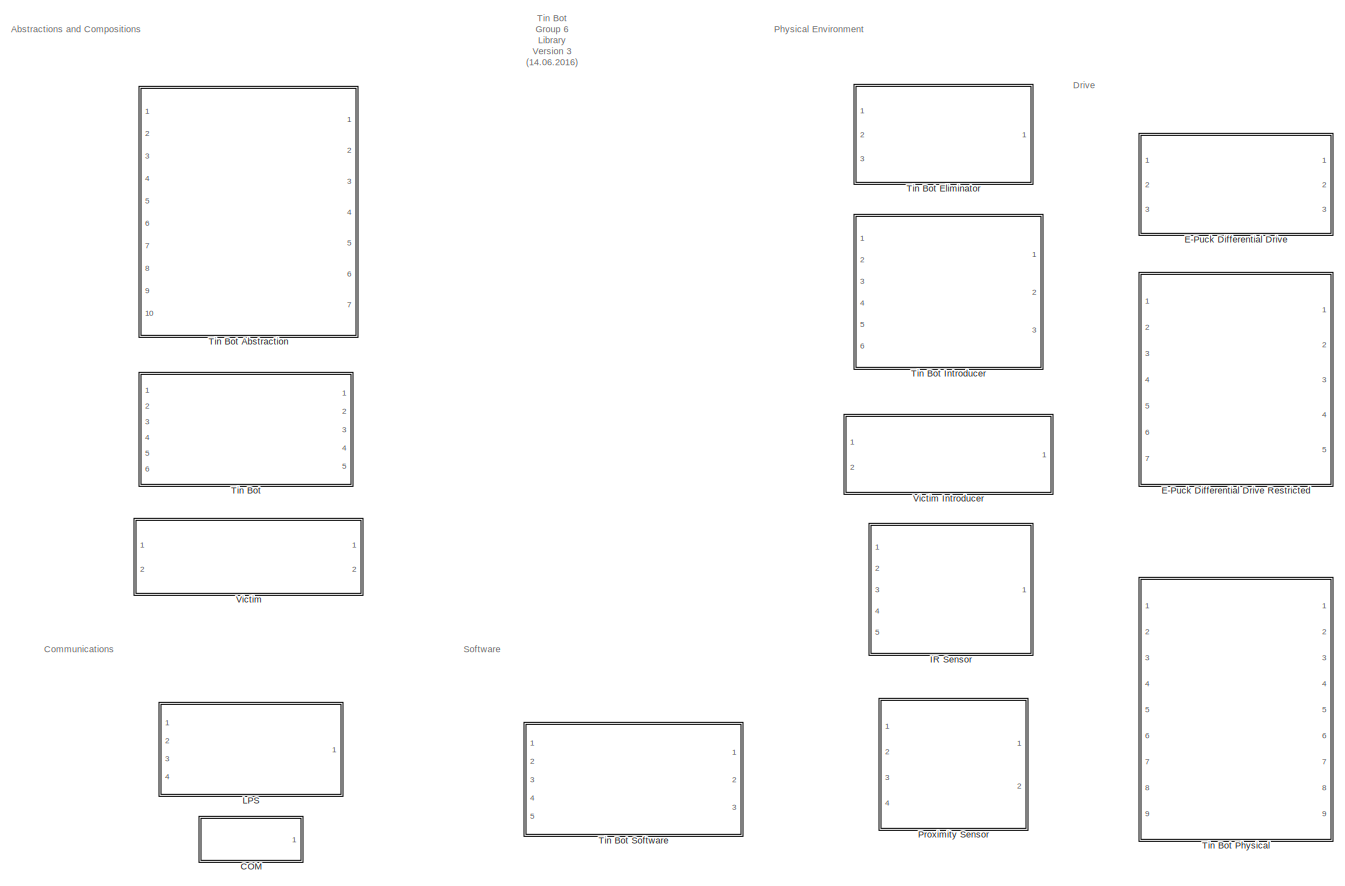
[diagram: root canvas - part 1/1, most of the canvas]
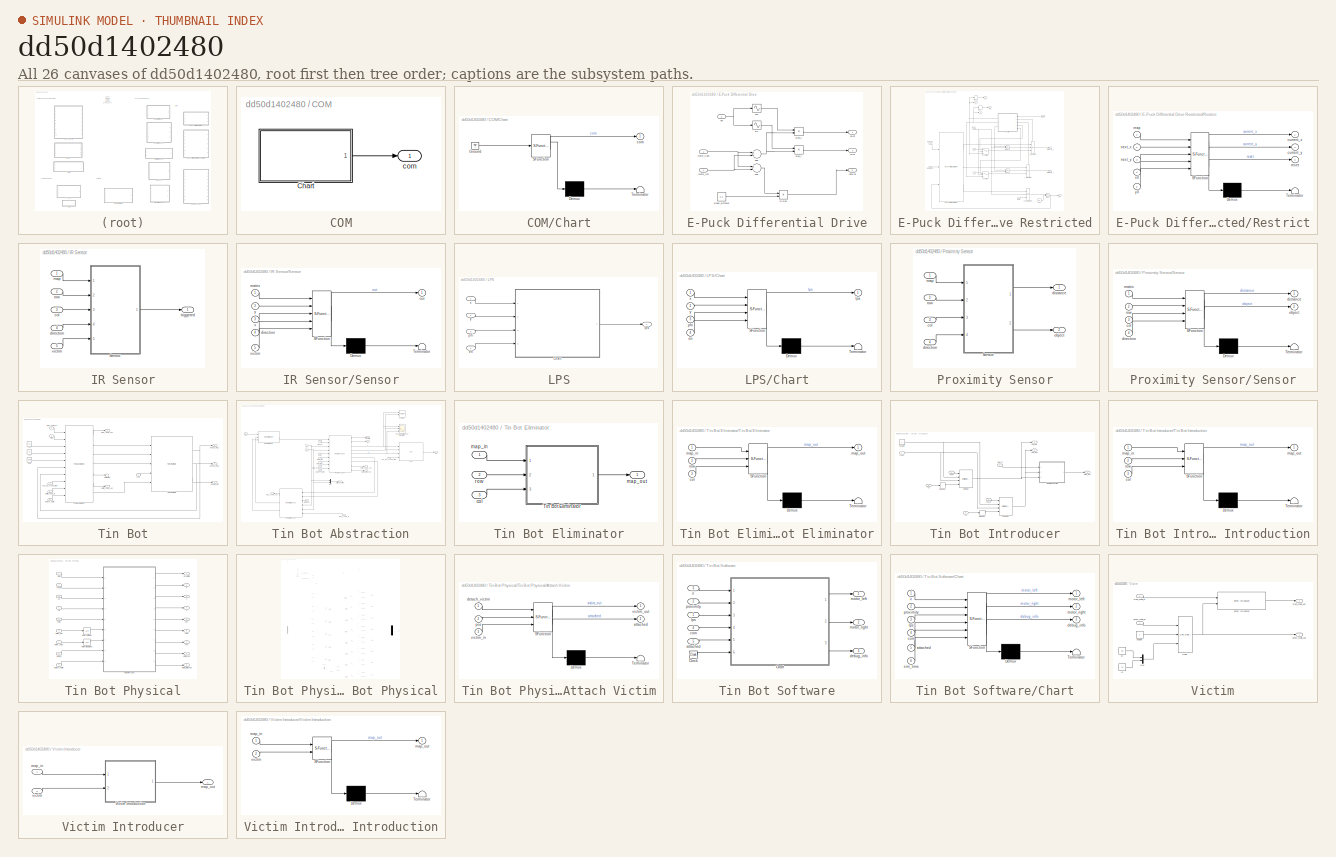
[diagram: thumbnail index - all 26 canvases of the model, root first then tree order]
MODEL slx_dd50d1402480
KIND library
CONFIG AbsTol = auto
CONFIG FixedStep = auto
CONFIG MaxStep = auto
CONFIG MinStep = auto
CONFIG RelTol = 1e-3
CONFIG SampleTimeConstraint = Unconstrained
CONFIG Solver = ode45
CONFIG SolverMode = Auto
CONFIG SolverName = ode45
CONFIG StartTime = 0.0
CONFIG StopTime = 10.0
BLOCK [SubSystem] COM
  Ports = [0, 1]
  RequestExecContextInheritance = off
  Variant = off
BLOCK [SubSystem] COM/Chart
  ErrorFcn = Stateflow.Translate.translate
  PermitHierarchicalResolution = ExplicitOnly
  Ports = [0, 1]
  RequestExecContextInheritance = off
  SFBlockType = Chart
  Variant = off
BLOCK [Demux] COM/Chart/ Demux 
  Outputs = 1
  Ports = [1, 1]
BLOCK [Ground] COM/Chart/ Ground 
BLOCK [S-Function] COM/Chart/ SFunction 
  EnableBusSupport = off
  FunctionName = sf_sfun
  PortCounts = [1 2]
  Ports = [1, 2]
  SFunctionDeploymentMode = off
  Tag = Stateflow S-Function tinbot 10
BLOCK [Terminator] COM/Chart/ Terminator 
BLOCK [Outport] COM/Chart/com
  IconDisplay = Port number
BLOCK [Outport] COM/com
  IconDisplay = Port number
BLOCK [SubSystem] E-Puck Differential Drive
  Ports = [3, 3]
  RequestExecContextInheritance = off
  TreatAsAtomicUnit = on
  Variant = off
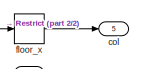
[diagram: E-Puck Differential Drive Restricted - part 1/2, top center region]
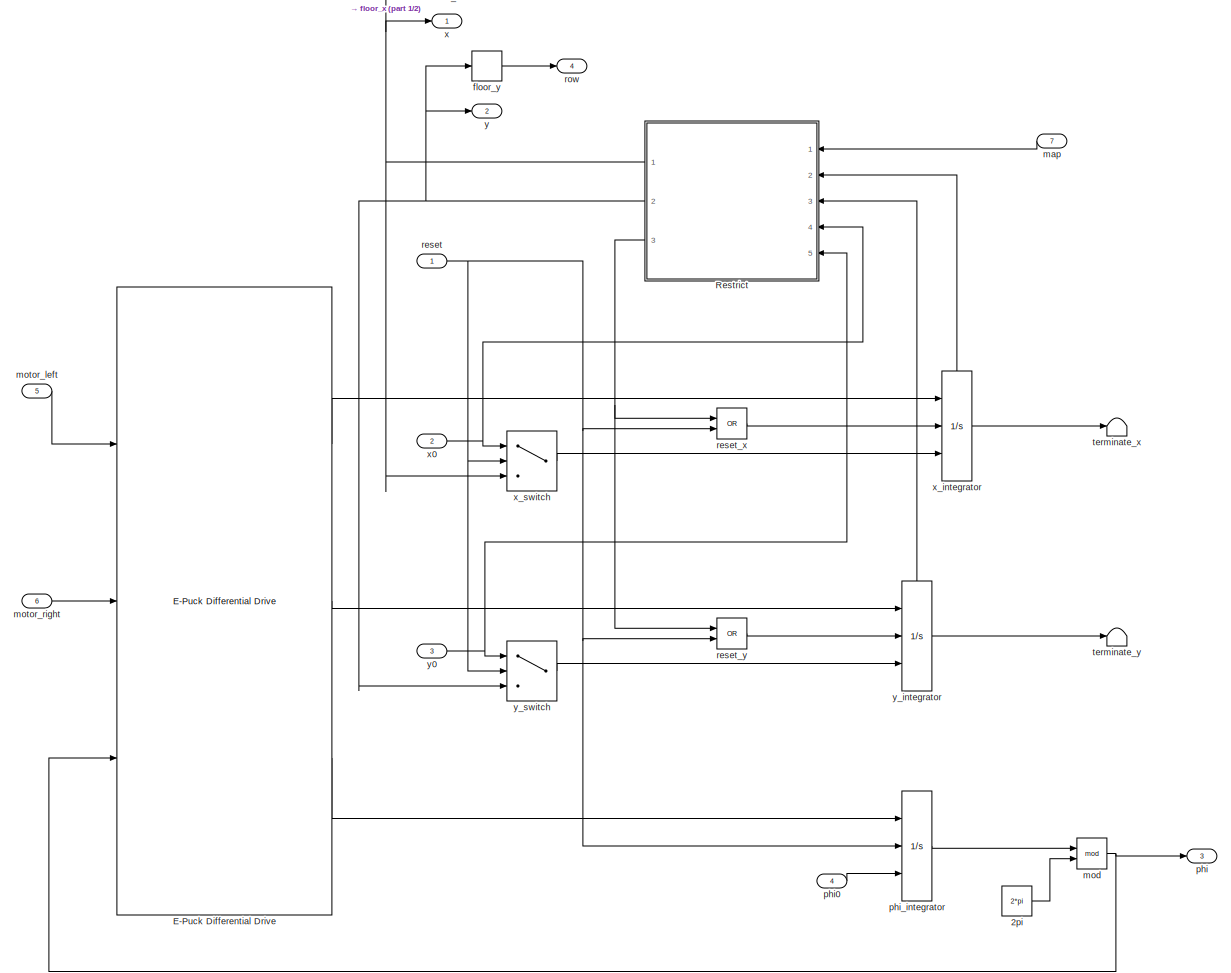
[diagram: E-Puck Differential Drive Restricted - part 2/2, most of the canvas]
BLOCK [SubSystem] E-Puck Differential Drive Restricted
  Ports = [7, 5]
  RequestExecContextInheritance = off
  Variant = off
BLOCK [Constant] E-Puck Differential Drive Restricted/2pi
  Value = 2*pi
BLOCK [Reference] E-Puck Differential Drive Restricted/E-Puck Differential Drive  REF=tinbot/E-Puck Differential Drive  (lib defined in slx_3c5c153e9850, slx_5b2796442827, +1 more)
  Ports = [3, 3]
  SourceBlock = tinbot/E-Puck Differential Drive
BLOCK [SubSystem] E-Puck Differential Drive Restricted/Restrict
  ErrorFcn = Stateflow.Translate.translate
  PermitHierarchicalResolution = ExplicitOnly
  Ports = [5, 3]
  RequestExecContextInheritance = off
  SFBlockType = Chart
  TreatAsAtomicUnit = on
  Variant = off
BLOCK [Demux] E-Puck Differential Drive Restricted/Restrict/ Demux 
  Outputs = 1
  Ports = [1, 1]
BLOCK [S-Function] E-Puck Differential Drive Restricted/Restrict/ SFunction 
  EnableBusSupport = on
  FunctionName = sf_sfun
  PortCounts = [5 4]
  Ports = [5, 4]
  SFunctionDeploymentMode = off
  Tag = Stateflow S-Function tinbot 3
BLOCK [Terminator] E-Puck Differential Drive Restricted/Restrict/ Terminator 
BLOCK [Outport] E-Puck Differential Drive Restricted/Restrict/current_x
  IconDisplay = Port number
BLOCK [Outport] E-Puck Differential Drive Restricted/Restrict/current_y
  IconDisplay = Port number
  Port = 2
BLOCK [Inport] E-Puck Differential Drive Restricted/Restrict/map
  IconDisplay = Port number
BLOCK [Inport] E-Puck Differential Drive Restricted/Restrict/next_x
  IconDisplay = Port number
  Port = 2
BLOCK [Inport] E-Puck Differential Drive Restricted/Restrict/next_y
  IconDisplay = Port number
  Port = 3
BLOCK [Outport] E-Puck Differential Drive Restricted/Restrict/reset
  IconDisplay = Port number
  Port = 3
BLOCK [Inport] E-Puck Differential Drive Restricted/Restrict/x0
  IconDisplay = Port number
  Port = 4
BLOCK [Inport] E-Puck Differential Drive Restricted/Restrict/y0
  IconDisplay = Port number
  Port = 5
BLOCK [Outport] E-Puck Differential Drive Restricted/col
  IconDisplay = Port number
  Port = 5
BLOCK [Rounding] E-Puck Differential Drive Restricted/floor_x
BLOCK [Rounding] E-Puck Differential Drive Restricted/floor_y
BLOCK [Inport] E-Puck Differential Drive Restricted/map
  IconDisplay = Port number
  Port = 7
BLOCK [Math] E-Puck Differential Drive Restricted/mod
  Operator = mod
  Ports = [2, 1]
BLOCK [Inport] E-Puck Differential Drive Restricted/motor_left
  IconDisplay = Port number
  Port = 5
BLOCK [Inport] E-Puck Differential Drive Restricted/motor_right
  IconDisplay = Port number
  Port = 6
BLOCK [Outport] E-Puck Differential Drive Restricted/phi 
  IconDisplay = Port number
  Port = 3
BLOCK [Inport] E-Puck Differential Drive Restricted/phi0
  IconDisplay = Port number
  Port = 4
BLOCK [Integrator] E-Puck Differential Drive Restricted/phi_integrator
  ExternalReset = rising
  InitialConditionSource = external
  Ports = [3, 1]
BLOCK [Inport] E-Puck Differential Drive Restricted/reset
  IconDisplay = Port number
BLOCK [Logic] E-Puck Differential Drive Restricted/reset_x
  AllPortsSameDT = off
  Operator = OR
  OutDataTypeStr = boolean
  Ports = [2, 1]
BLOCK [Logic] E-Puck Differential Drive Restricted/reset_y
  AllPortsSameDT = off
  Operator = OR
  OutDataTypeStr = boolean
  Ports = [2, 1]
BLOCK [Outport] E-Puck Differential Drive Restricted/row
  IconDisplay = Port number
  Port = 4
BLOCK [Terminator] E-Puck Differential Drive Restricted/terminate_x
BLOCK [Terminator] E-Puck Differential Drive Restricted/terminate_y
BLOCK [Outport] E-Puck Differential Drive Restricted/x 
  IconDisplay = Port number
BLOCK [Inport] E-Puck Differential Drive Restricted/x0
  IconDisplay = Port number
  Port = 2
BLOCK [Integrator] E-Puck Differential Drive Restricted/x_integrator
  ExternalReset = rising
  InitialConditionSource = external
  Ports = [3, 1, 0, 0, 1]
  ShowStatePort = on
BLOCK [Switch] E-Puck Differential Drive Restricted/x_switch
  Criteria = u2 ~= 0
  InputSameDT = off
  SaturateOnIntegerOverflow = off
BLOCK [Outport] E-Puck Differential Drive Restricted/y
  IconDisplay = Port number
  Port = 2
BLOCK [Inport] E-Puck Differential Drive Restricted/y0
  IconDisplay = Port number
  Port = 3
BLOCK [Integrator] E-Puck Differential Drive Restricted/y_integrator
  ExternalReset = rising
  InitialConditionSource = external
  Ports = [3, 1, 0, 0, 1]
  ShowStatePort = on
BLOCK [Switch] E-Puck Differential Drive Restricted/y_switch
  Criteria = u2 ~= 0
  InputSameDT = off
  SaturateOnIntegerOverflow = off
BLOCK [Product] E-Puck Differential Drive/Divide
  InputSameDT = off
  Inputs = */
  OutDataTypeStr = Inherit: Inherit via internal rule
  Ports = [2, 1]
  RndMeth = Floor
  SaturateOnIntegerOverflow = off
BLOCK [Sum] E-Puck Differential Drive/add
  InputSameDT = off
  OutDataTypeStr = Inherit: Inherit via internal rule
  Ports = [2, 1]
  SaturateOnIntegerOverflow = off
BLOCK [Sin] E-Puck Differential Drive/cos
  Amplitude = 0.5
  Phase = pi/2
  Ports = [1, 1]
  SampleTime = 0
  TimeSource = Use external signal
BLOCK [Outport] E-Puck Differential Drive/dphi//dt
  IconDisplay = Port number
  Port = 3
BLOCK [Outport] E-Puck Differential Drive/dx//dt
  IconDisplay = Port number
BLOCK [Outport] E-Puck Differential Drive/dy//dt
  IconDisplay = Port number
  Port = 2
BLOCK [Inport] E-Puck Differential Drive/motor_left
  IconDisplay = Port number
BLOCK [Inport] E-Puck Differential Drive/motor_right
  IconDisplay = Port number
  Port = 2
BLOCK [Inport] E-Puck Differential Drive/phi
  IconDisplay = Port number
  Port = 3
BLOCK [Product] E-Puck Differential Drive/prod_x
  InputSameDT = off
  OutDataTypeStr = Inherit: Inherit via internal rule
  Ports = [2, 1]
  RndMeth = Floor
  SaturateOnIntegerOverflow = off
BLOCK [Product] E-Puck Differential Drive/prod_y
  InputSameDT = off
  OutDataTypeStr = Inherit: Inherit via internal rule
  Ports = [2, 1]
  RndMeth = Floor
  SaturateOnIntegerOverflow = off
BLOCK [Sin] E-Puck Differential Drive/sin 
  Amplitude = 0.5
  Ports = [1, 1]
  SampleTime = 0
  TimeSource = Use external signal
BLOCK [Sum] E-Puck Differential Drive/sub
  InputSameDT = off
  Inputs = +-
  OutDataTypeStr = Inherit: Inherit via internal rule
  Ports = [2, 1]
  SaturateOnIntegerOverflow = off
BLOCK [Constant] E-Puck Differential Drive/wheel_distance
  Value = 5.3
BLOCK [SubSystem] IR Sensor
  Ports = [5, 1]
  RequestExecContextInheritance = off
  Variant = off
BLOCK [SubSystem] IR Sensor/Sensor
  ErrorFcn = Stateflow.Translate.translate
  PermitHierarchicalResolution = ExplicitOnly
  Ports = [5, 1]
  RequestExecContextInheritance = off
  SFBlockType = MATLAB Function
  TreatAsAtomicUnit = on
  Variant = off
BLOCK [Demux] IR Sensor/Sensor/ Demux 
  Outputs = 1
  Ports = [1, 1]
BLOCK [S-Function] IR Sensor/Sensor/ SFunction 
  EnableBusSupport = on
  FunctionName = sf_sfun
  PortCounts = [5 2]
  Ports = [5, 2]
  SFunctionDeploymentMode = off
  Tag = Stateflow S-Function tinbot 5
BLOCK [Terminator] IR Sensor/Sensor/ Terminator 
BLOCK [Inport] IR Sensor/Sensor/direction
  IconDisplay = Port number
  Port = 4
BLOCK [Inport] IR Sensor/Sensor/matrix
  IconDisplay = Port number
BLOCK [Outport] IR Sensor/Sensor/out
  IconDisplay = Port number
BLOCK [Inport] IR Sensor/Sensor/victim
  IconDisplay = Port number
  Port = 5
BLOCK [Inport] IR Sensor/Sensor/x
  IconDisplay = Port number
  Port = 3
BLOCK [Inport] IR Sensor/Sensor/y
  IconDisplay = Port number
  Port = 2
BLOCK [Inport] IR Sensor/col
  IconDisplay = Port number
  Port = 3
BLOCK [Inport] IR Sensor/direction
  IconDisplay = Port number
  Port = 4
BLOCK [Inport] IR Sensor/map
  IconDisplay = Port number
BLOCK [Inport] IR Sensor/row
  IconDisplay = Port number
  Port = 2
BLOCK [Outport] IR Sensor/triggered
  IconDisplay = Port number
  OutDataTypeStr = double
BLOCK [Inport] IR Sensor/victim
  IconDisplay = Port number
  Port = 5
BLOCK [SubSystem] LPS
  Ports = [4, 1]
  RequestExecContextInheritance = off
  Variant = off
BLOCK [SubSystem] LPS/Chart
  ErrorFcn = Stateflow.Translate.translate
  PermitHierarchicalResolution = ExplicitOnly
  Ports = [4, 1]
  RequestExecContextInheritance = off
  SFBlockType = Chart
  Variant = off
BLOCK [Demux] LPS/Chart/ Demux 
  Outputs = 1
  Ports = [1, 1]
BLOCK [S-Function] LPS/Chart/ SFunction 
  EnableBusSupport = off
  FunctionName = sf_sfun
  PortCounts = [4 2]
  Ports = [4, 2]
  SFunctionDeploymentMode = off
  Tag = Stateflow S-Function tinbot 6
BLOCK [Terminator] LPS/Chart/ Terminator 
BLOCK [Inport] LPS/Chart/en
  IconDisplay = Port number
  Port = 4
BLOCK [Outport] LPS/Chart/lps
  IconDisplay = Port number
BLOCK [Inport] LPS/Chart/phi
  IconDisplay = Port number
  Port = 3
BLOCK [Inport] LPS/Chart/x
  IconDisplay = Port number
BLOCK [Inport] LPS/Chart/y
  IconDisplay = Port number
  Port = 2
BLOCK [Inport] LPS/en
  IconDisplay = Port number
  Port = 4
BLOCK [Outport] LPS/lps
  IconDisplay = Port number
BLOCK [Inport] LPS/phi
  IconDisplay = Port number
  Port = 3
BLOCK [Inport] LPS/x
  IconDisplay = Port number
BLOCK [Inport] LPS/y
  IconDisplay = Port number
  Port = 2
BLOCK [SubSystem] Proximity Sensor
  Ports = [4, 2]
  RequestExecContextInheritance = off
  Variant = off
BLOCK [SubSystem] Proximity Sensor/Sensor
  ErrorFcn = Stateflow.Translate.translate
  PermitHierarchicalResolution = ExplicitOnly
  Ports = [4, 2]
  RequestExecContextInheritance = off
  SFBlockType = MATLAB Function
  TreatAsAtomicUnit = on
  Variant = off
BLOCK [Demux] Proximity Sensor/Sensor/ Demux 
  Outputs = 1
  Ports = [1, 1]
BLOCK [S-Function] Proximity Sensor/Sensor/ SFunction 
  EnableBusSupport = on
  FunctionName = sf_sfun
  PortCounts = [4 3]
  Ports = [4, 3]
  SFunctionDeploymentMode = off
  Tag = Stateflow S-Function tinbot 4
BLOCK [Terminator] Proximity Sensor/Sensor/ Terminator 
BLOCK [Inport] Proximity Sensor/Sensor/col
  IconDisplay = Port number
  Port = 3
BLOCK [Inport] Proximity Sensor/Sensor/direction
  IconDisplay = Port number
  Port = 4
BLOCK [Outport] Proximity Sensor/Sensor/distance
  IconDisplay = Port number
BLOCK [Inport] Proximity Sensor/Sensor/matrix
  IconDisplay = Port number
BLOCK [Outport] Proximity Sensor/Sensor/object
  IconDisplay = Port number
  Port = 2
BLOCK [Inport] Proximity Sensor/Sensor/row
  IconDisplay = Port number
  Port = 2
BLOCK [Inport] Proximity Sensor/col
  IconDisplay = Port number
  Port = 3
BLOCK [Inport] Proximity Sensor/direction
  IconDisplay = Port number
  Port = 4
BLOCK [Outport] Proximity Sensor/distance
  IconDisplay = Port number
BLOCK [Inport] Proximity Sensor/map
  IconDisplay = Port number
BLOCK [Outport] Proximity Sensor/object
  IconDisplay = Port number
  Port = 2
BLOCK [Inport] Proximity Sensor/row
  IconDisplay = Port number
  Port = 2
BLOCK [SubSystem] Tin Bot
  Ports = [6, 5]
  RequestExecContextInheritance = off
  Variant = off
BLOCK [SubSystem] Tin Bot Abstraction
  Ports = [10, 7]
  RequestExecContextInheritance = off
  Variant = off
BLOCK [Ground] Tin Bot Abstraction/Ground
BLOCK [Ground] Tin Bot Abstraction/Ground1
BLOCK [Reference] Tin Bot Abstraction/LPS  REF=tinbot/LPS  (lib defined in slx_3c5c153e9850, slx_5b2796442827, +1 more)
  Ports = [4, 1]
  SourceBlock = tinbot/LPS
BLOCK [Mux] Tin Bot Abstraction/Mux
  DisplayOption = bar
  Inputs = 2
  Ports = [2, 1]
BLOCK [Scope] Tin Bot Abstraction/Scope Position and Orientation
  NumInputPorts = 3
  Ports = [3]
  ScopeSpecificationString = Simulink.scopes.TimeScopeBlockCfg('CurrentConfiguration', extmgr.ConfigurationSet(extmgr.Configuration('Core','General UI',true),extmgr.Configuration('Core','Source UI',true),extmgr.Configuration('Sources','WiredSimulink',true),extmgr.Configuration('Visuals','Time Domain',true),extmgr.Configuration('Tools','Plot Navigation',true),extmgr.Configuration('Tools','Measurements',true,'Version','2016a'))...<+74ch>
BLOCK [Reference] Tin Bot Abstraction/Tin Bot Eliminator  REF=tinbot/Tin Bot Eliminator  (lib defined in slx_3c5c153e9850, slx_5b2796442827, +1 more)
  Ports = [3, 1]
  SourceBlock = tinbot/Tin Bot Eliminator
BLOCK [Reference] Tin Bot Abstraction/Tin Bot Introducer  REF=tinbot/Tin Bot Introducer  (lib defined in slx_3c5c153e9850, slx_5b2796442827, +1 more)
  Ports = [6, 3]
  SourceBlock = tinbot/Tin Bot Introducer
BLOCK [Reference] Tin Bot Abstraction/Tin Bot Physical  REF=tinbot/Tin Bot Physical  (lib defined in slx_3c5c153e9850, slx_5b2796442827, +1 more)
  Ports = [9, 9]
  SourceBlock = tinbot/Tin Bot Physical
BLOCK [Reference] Tin Bot Abstraction/XY Graph  REF=simulink/Sinks/XY Graph
  Ports = [2]
  SourceBlock = simulink/Sinks/XY Graph
  SourceType = XY scope.
BLOCK [Inport] Tin Bot Abstraction/detach_victim
  IconDisplay = Port number
  Port = 10
BLOCK [Inport] Tin Bot Abstraction/has_lps_connection
  IconDisplay = Port number
  Port = 8
BLOCK [Outport] Tin Bot Abstraction/initial_position
  IconDisplay = Port number
  Port = 5
BLOCK [Outport] Tin Bot Abstraction/ir
  IconDisplay = Port number
  Port = 4
BLOCK [Outport] Tin Bot Abstraction/lps
  IconDisplay = Port number
  Port = 2
BLOCK [Inport] Tin Bot Abstraction/map
  IconDisplay = Port number
  Port = 2
BLOCK [Inport] Tin Bot Abstraction/map_chain_in
  IconDisplay = Port number
BLOCK [Outport] Tin Bot Abstraction/map_chain_out
  IconDisplay = Port number
BLOCK [Inport] Tin Bot Abstraction/motor_left
  IconDisplay = Port number
  Port = 6
BLOCK [Inport] Tin Bot Abstraction/motor_right
  IconDisplay = Port number
  Port = 7
BLOCK [Inport] Tin Bot Abstraction/phi0
  IconDisplay = Port number
  Port = 5
BLOCK [Outport] Tin Bot Abstraction/proximity
  IconDisplay = Port number
  Port = 3
BLOCK [Outport] Tin Bot Abstraction/victim_attached
  IconDisplay = Port number
  Port = 7
BLOCK [Inport] Tin Bot Abstraction/victim_chain_in
  IconDisplay = Port number
  Port = 9
BLOCK [Outport] Tin Bot Abstraction/victim_chain_out
  IconDisplay = Port number
  Port = 6
BLOCK [Inport] Tin Bot Abstraction/x0
  IconDisplay = Port number
  Port = 3
BLOCK [Inport] Tin Bot Abstraction/y0
  IconDisplay = Port number
  Port = 4
BLOCK [SubSystem] Tin Bot Eliminator
  Ports = [3, 1]
  RequestExecContextInheritance = off
  Variant = off
BLOCK [SubSystem] Tin Bot Eliminator/Tin Bot Eliminator
  ErrorFcn = Stateflow.Translate.translate
  PermitHierarchicalResolution = ExplicitOnly
  Ports = [3, 1]
  RequestExecContextInheritance = off
  SFBlockType = MATLAB Function
  TreatAsAtomicUnit = on
  Variant = off
BLOCK [Demux] Tin Bot Eliminator/Tin Bot Eliminator/ Demux 
  Outputs = 1
  Ports = [1, 1]
BLOCK [S-Function] Tin Bot Eliminator/Tin Bot Eliminator/ SFunction 
  EnableBusSupport = on
  FunctionName = sf_sfun
  PortCounts = [3 2]
  Ports = [3, 2]
  SFunctionDeploymentMode = off
  Tag = Stateflow S-Function tinbot 1
BLOCK [Terminator] Tin Bot Eliminator/Tin Bot Eliminator/ Terminator 
BLOCK [Inport] Tin Bot Eliminator/Tin Bot Eliminator/col
  IconDisplay = Port number
  Port = 3
BLOCK [Inport] Tin Bot Eliminator/Tin Bot Eliminator/map_in
  IconDisplay = Port number
BLOCK [Outport] Tin Bot Eliminator/Tin Bot Eliminator/map_out
  IconDisplay = Port number
BLOCK [Inport] Tin Bot Eliminator/Tin Bot Eliminator/row
  IconDisplay = Port number
  Port = 2
BLOCK [Inport] Tin Bot Eliminator/col
  IconDisplay = Port number
  Port = 3
BLOCK [Inport] Tin Bot Eliminator/map_in
  IconDisplay = Port number
  PortDimensions = [100 100]
BLOCK [Outport] Tin Bot Eliminator/map_out
  IconDisplay = Port number
  PortDimensions = [100 100]
BLOCK [Inport] Tin Bot Eliminator/row
  IconDisplay = Port number
  Port = 2
BLOCK [SubSystem] Tin Bot Introducer
  Ports = [6, 3]
  RequestExecContextInheritance = off
  Variant = off
BLOCK [Reference] Tin Bot Introducer/Col Delay  REF=simulink/Additional Math
& Discrete/Additional
Discrete/Unit Delay
Enabled
Resettable
External IC
  Ports = [4, 1]
  SourceBlock = simulink/Additional Math\n& Discrete/Additional\nDiscrete/Unit Delay\nEnabled\nResettable\nExternal IC
  SourceType = Unit Delay Enabled Resettable External Initial Condition
BLOCK [Constant] Tin Bot Introducer/Enable
BLOCK [Rounding] Tin Bot Introducer/Round  X
BLOCK [Rounding] Tin Bot Introducer/Round Y
BLOCK [Reference] Tin Bot Introducer/Row Delay  REF=simulink/Additional Math
& Discrete/Additional
Discrete/Unit Delay
Enabled
Resettable
External IC
  Ports = [4, 1]
  SourceBlock = simulink/Additional Math\n& Discrete/Additional\nDiscrete/Unit Delay\nEnabled\nResettable\nExternal IC
  SourceType = Unit Delay Enabled Resettable External Initial Condition
BLOCK [SubSystem] Tin Bot Introducer/Tin Bot Introduction
  ErrorFcn = Stateflow.Translate.translate
  PermitHierarchicalResolution = ExplicitOnly
  Ports = [3, 1]
  RequestExecContextInheritance = off
  SFBlockType = MATLAB Function
  TreatAsAtomicUnit = on
  Variant = off
BLOCK [Demux] Tin Bot Introducer/Tin Bot Introduction/ Demux 
  Outputs = 1
  Ports = [1, 1]
BLOCK [S-Function] Tin Bot Introducer/Tin Bot Introduction/ SFunction 
  EnableBusSupport = on
  FunctionName = sf_sfun
  PortCounts = [3 2]
  Ports = [3, 2]
  SFunctionDeploymentMode = off
  Tag = Stateflow S-Function tinbot 2
BLOCK [Terminator] Tin Bot Introducer/Tin Bot Introduction/ Terminator 
BLOCK [Inport] Tin Bot Introducer/Tin Bot Introduction/col
  IconDisplay = Port number
  Port = 3
BLOCK [Inport] Tin Bot Introducer/Tin Bot Introduction/map_in
  IconDisplay = Port number
BLOCK [Outport] Tin Bot Introducer/Tin Bot Introduction/map_out
  IconDisplay = Port number
BLOCK [Inport] Tin Bot Introducer/Tin Bot Introduction/row
  IconDisplay = Port number
  Port = 2
BLOCK [Inport] Tin Bot Introducer/col_in
  IconDisplay = Port number
  Interpolate = off
  Port = 2
BLOCK [Outport] Tin Bot Introducer/col_out
  IconDisplay = Port number
  Port = 3
BLOCK [Inport] Tin Bot Introducer/map_in
  IconDisplay = Port number
  Interpolate = off
  Port = 6
  PortDimensions = [100 100]
BLOCK [Outport] Tin Bot Introducer/map_out
  IconDisplay = Port number
  PortDimensions = [100 100]
BLOCK [Inport] Tin Bot Introducer/reset
  IconDisplay = Port number
  Port = 3
BLOCK [Inport] Tin Bot Introducer/row_in
  IconDisplay = Port number
  Interpolate = off
BLOCK [Outport] Tin Bot Introducer/row_out
  IconDisplay = Port number
  Port = 2
BLOCK [Inport] Tin Bot Introducer/x0
  IconDisplay = Port number
  Port = 4
BLOCK [Inport] Tin Bot Introducer/y0
  IconDisplay = Port number
  Port = 5
BLOCK [SubSystem] Tin Bot Physical
  Ports = [9, 9]
  RequestExecContextInheritance = off
  Variant = off
BLOCK [UnitDelay] Tin Bot Physical/Motor Left Delay
  InputProcessing = Elements as channels (sample based)
  SampleTime = -1
BLOCK [UnitDelay] Tin Bot Physical/Motor Right Delay
  InputProcessing = Elements as channels (sample based)
  SampleTime = -1
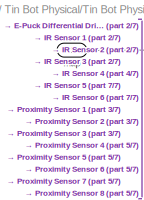
[diagram: Tin Bot Physical/Tin Bot Physical - part 1/7, top left region]
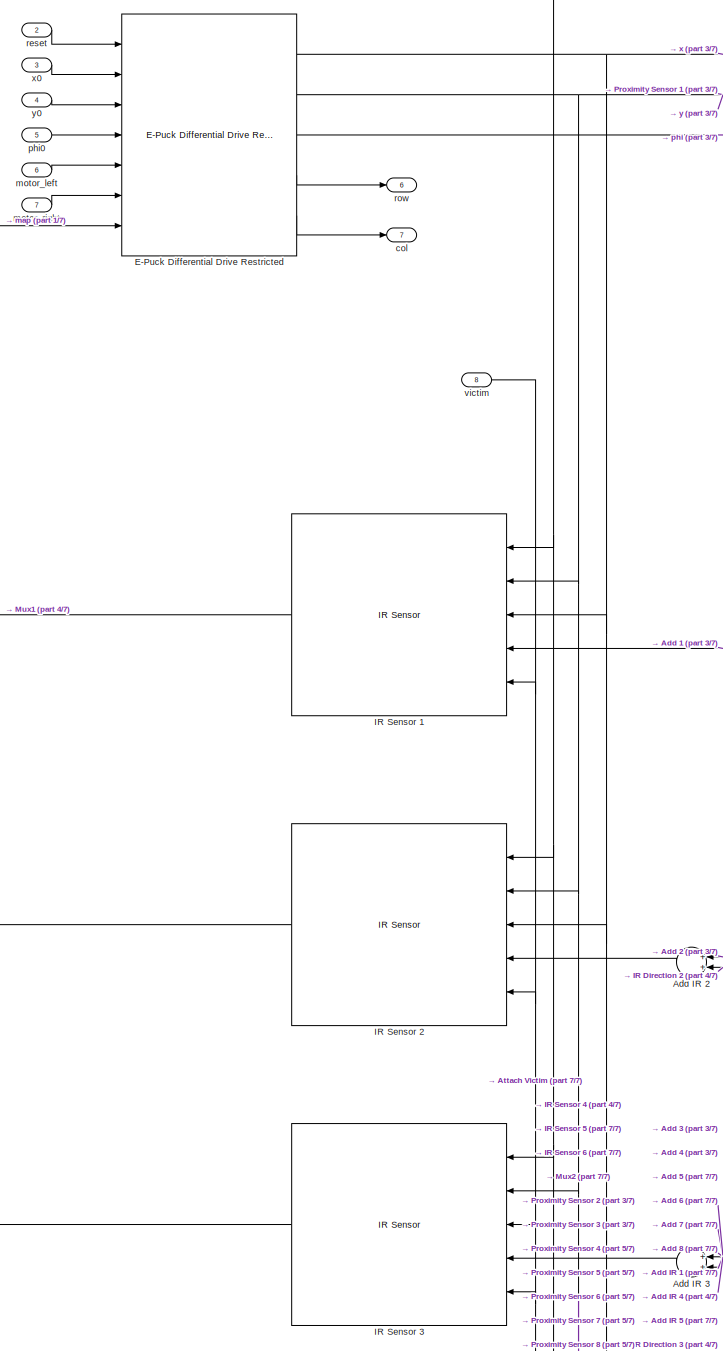
[diagram: Tin Bot Physical/Tin Bot Physical - part 2/7, top left region]
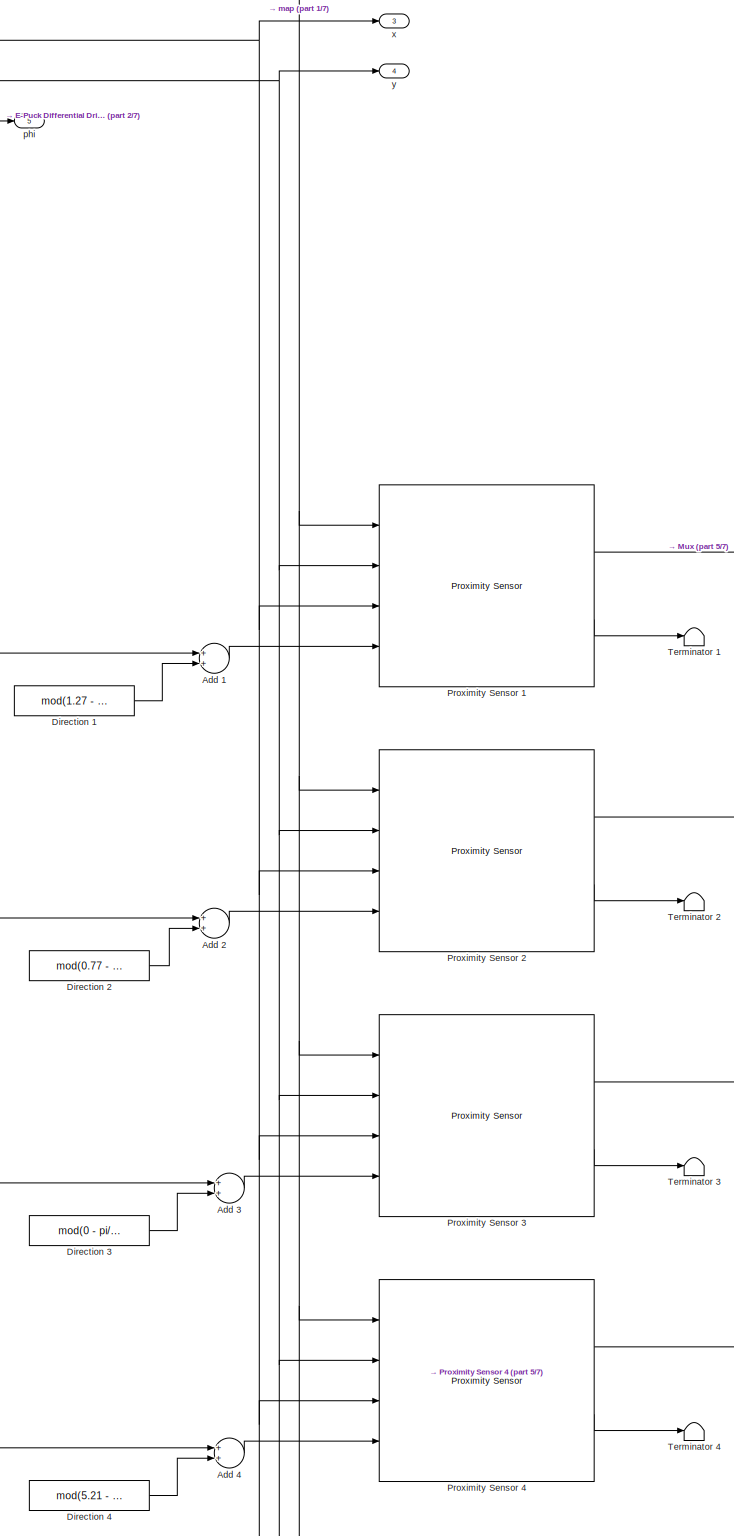
[diagram: Tin Bot Physical/Tin Bot Physical - part 3/7, central region]
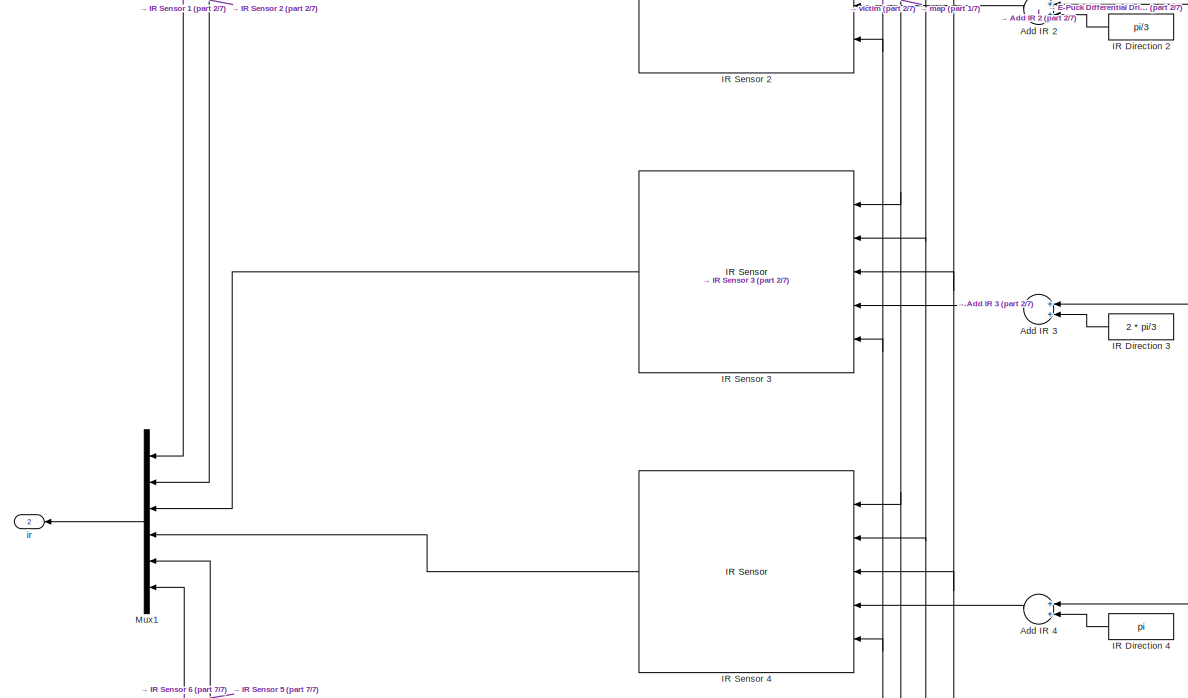
[diagram: Tin Bot Physical/Tin Bot Physical - part 4/7, middle left region]
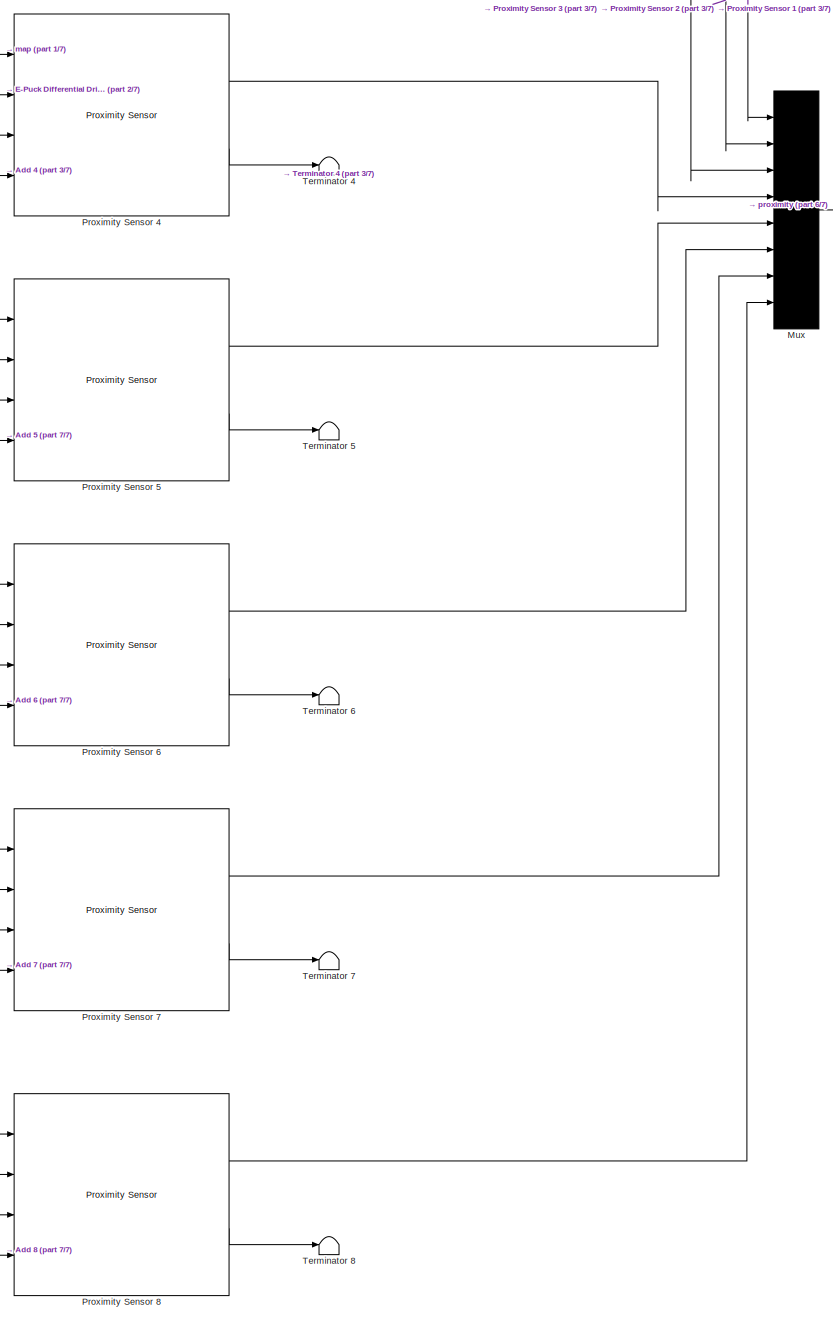
[diagram: Tin Bot Physical/Tin Bot Physical - part 5/7, bottom right region]
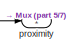
[diagram: Tin Bot Physical/Tin Bot Physical - part 6/7, middle right region]
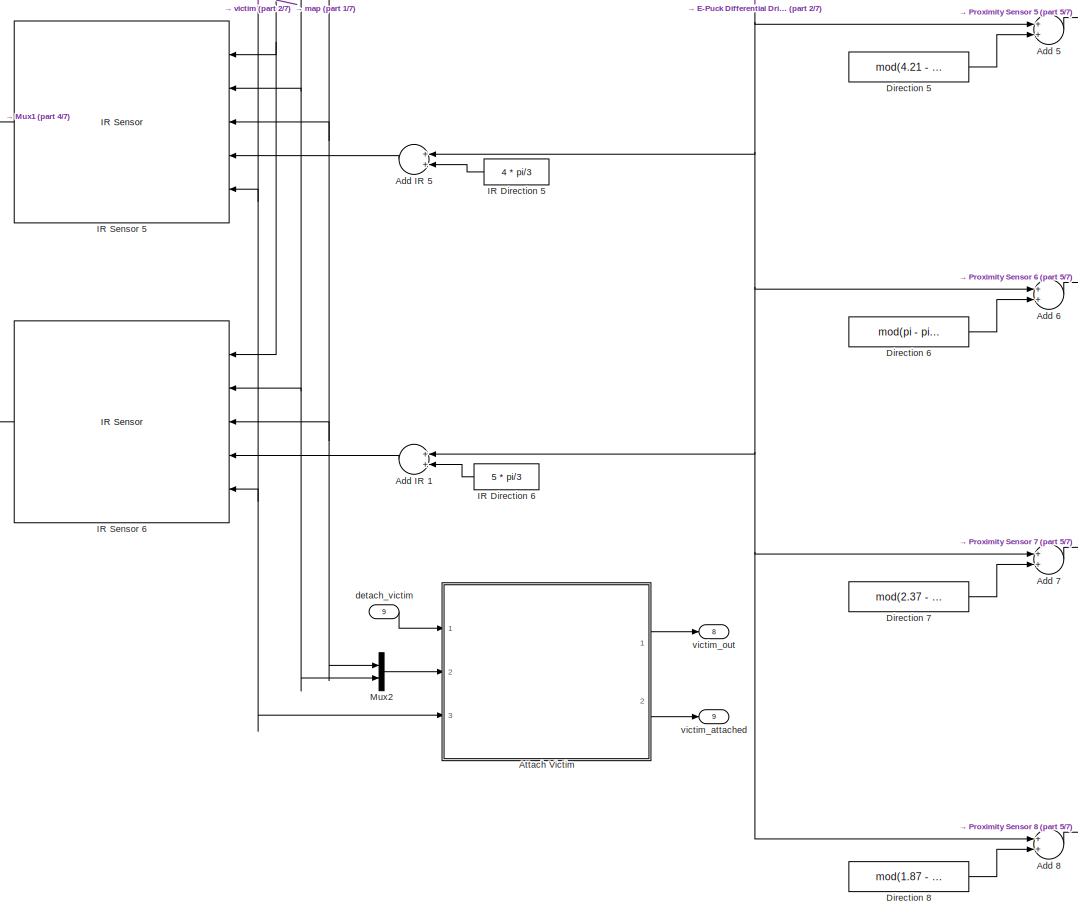
[diagram: Tin Bot Physical/Tin Bot Physical - part 7/7, bottom center region]
BLOCK [SubSystem] Tin Bot Physical/Tin Bot Physical
  Ports = [9, 9]
  RequestExecContextInheritance = off
  TreatAsAtomicUnit = on
  Variant = off
BLOCK [Sum] Tin Bot Physical/Tin Bot Physical/Add 1
  InputSameDT = off
  OutDataTypeStr = Inherit: Inherit via internal rule
  Ports = [2, 1]
  SaturateOnIntegerOverflow = off
BLOCK [Sum] Tin Bot Physical/Tin Bot Physical/Add 2
  InputSameDT = off
  OutDataTypeStr = Inherit: Inherit via internal rule
  Ports = [2, 1]
  SaturateOnIntegerOverflow = off
BLOCK [Sum] Tin Bot Physical/Tin Bot Physical/Add 3
  InputSameDT = off
  OutDataTypeStr = Inherit: Inherit via internal rule
  Ports = [2, 1]
  SaturateOnIntegerOverflow = off
BLOCK [Sum] Tin Bot Physical/Tin Bot Physical/Add 4
  InputSameDT = off
  OutDataTypeStr = Inherit: Inherit via internal rule
  Ports = [2, 1]
  SaturateOnIntegerOverflow = off
BLOCK [Sum] Tin Bot Physical/Tin Bot Physical/Add 5
  InputSameDT = off
  OutDataTypeStr = Inherit: Inherit via internal rule
  Ports = [2, 1]
  SaturateOnIntegerOverflow = off
BLOCK [Sum] Tin Bot Physical/Tin Bot Physical/Add 6
  InputSameDT = off
  OutDataTypeStr = Inherit: Inherit via internal rule
  Ports = [2, 1]
  SaturateOnIntegerOverflow = off
BLOCK [Sum] Tin Bot Physical/Tin Bot Physical/Add 7
  InputSameDT = off
  OutDataTypeStr = Inherit: Inherit via internal rule
  Ports = [2, 1]
  SaturateOnIntegerOverflow = off
BLOCK [Sum] Tin Bot Physical/Tin Bot Physical/Add 8
  InputSameDT = off
  OutDataTypeStr = Inherit: Inherit via internal rule
  Ports = [2, 1]
  SaturateOnIntegerOverflow = off
BLOCK [Sum] Tin Bot Physical/Tin Bot Physical/Add IR 1
  InputSameDT = off
  OutDataTypeStr = Inherit: Inherit via internal rule
  Ports = [2, 1]
  SaturateOnIntegerOverflow = off
BLOCK [Sum] Tin Bot Physical/Tin Bot Physical/Add IR 2
  InputSameDT = off
  OutDataTypeStr = Inherit: Inherit via internal rule
  Ports = [2, 1]
  SaturateOnIntegerOverflow = off
BLOCK [Sum] Tin Bot Physical/Tin Bot Physical/Add IR 3
  InputSameDT = off
  OutDataTypeStr = Inherit: Inherit via internal rule
  Ports = [2, 1]
  SaturateOnIntegerOverflow = off
BLOCK [Sum] Tin Bot Physical/Tin Bot Physical/Add IR 4
  InputSameDT = off
  OutDataTypeStr = Inherit: Inherit via internal rule
  Ports = [2, 1]
  SaturateOnIntegerOverflow = off
BLOCK [Sum] Tin Bot Physical/Tin Bot Physical/Add IR 5
  InputSameDT = off
  OutDataTypeStr = Inherit: Inherit via internal rule
  Ports = [2, 1]
  SaturateOnIntegerOverflow = off
BLOCK [SubSystem] Tin Bot Physical/Tin Bot Physical/Attach Victim
  ErrorFcn = Stateflow.Translate.translate
  PermitHierarchicalResolution = ExplicitOnly
  Ports = [3, 2]
  RequestExecContextInheritance = off
  SFBlockType = Chart
  TreatAsAtomicUnit = on
  Variant = off
BLOCK [Demux] Tin Bot Physical/Tin Bot Physical/Attach Victim/ Demux 
  Outputs = 1
  Ports = [1, 1]
BLOCK [S-Function] Tin Bot Physical/Tin Bot Physical/Attach Victim/ SFunction 
  EnableBusSupport = off
  FunctionName = sf_sfun
  PortCounts = [3 3]
  Ports = [3, 3]
  SFunctionDeploymentMode = off
  Tag = Stateflow S-Function tinbot 9
BLOCK [Terminator] Tin Bot Physical/Tin Bot Physical/Attach Victim/ Terminator 
BLOCK [Outport] Tin Bot Physical/Tin Bot Physical/Attach Victim/attached
  IconDisplay = Port number
  Port = 2
BLOCK [Inport] Tin Bot Physical/Tin Bot Physical/Attach Victim/detach_victim
  IconDisplay = Port number
BLOCK [Inport] Tin Bot Physical/Tin Bot Physical/Attach Victim/pos
  IconDisplay = Port number
  Port = 2
BLOCK [Inport] Tin Bot Physical/Tin Bot Physical/Attach Victim/victim_in
  IconDisplay = Port number
  Port = 3
BLOCK [Outport] Tin Bot Physical/Tin Bot Physical/Attach Victim/victim_out
  IconDisplay = Port number
BLOCK [Constant] Tin Bot Physical/Tin Bot Physical/Direction 1
  Value = mod(1.27 - pi/2, 2*pi)
BLOCK [Constant] Tin Bot Physical/Tin Bot Physical/Direction 2
  Value = mod(0.77 - pi/2, 2*pi)
BLOCK [Constant] Tin Bot Physical/Tin Bot Physical/Direction 3
  Value = mod(0 - pi/2, 2*pi)
BLOCK [Constant] Tin Bot Physical/Tin Bot Physical/Direction 4
  Value = mod(5.21 - pi/2, 2*pi)
BLOCK [Constant] Tin Bot Physical/Tin Bot Physical/Direction 5
  Value = mod(4.21 - pi/2, 2*pi)
BLOCK [Constant] Tin Bot Physical/Tin Bot Physical/Direction 6
  Value = mod(pi - pi/2, 2*pi)
BLOCK [Constant] Tin Bot Physical/Tin Bot Physical/Direction 7
  Value = mod(2.37 - pi/2, 2*pi)
BLOCK [Constant] Tin Bot Physical/Tin Bot Physical/Direction 8
  Value = mod(1.87 - pi/2, 2*pi)
BLOCK [Reference] Tin Bot Physical/Tin Bot Physical/E-Puck Differential Drive Restricted  REF=tinbot/E-Puck Differential Drive Restricted  (lib defined in slx_3c5c153e9850, slx_5b2796442827, +1 more)
  Ports = [7, 5]
  SourceBlock = tinbot/E-Puck Differential Drive Restricted
BLOCK [Constant] Tin Bot Physical/Tin Bot Physical/IR Direction 2
  Value = pi/3
BLOCK [Constant] Tin Bot Physical/Tin Bot Physical/IR Direction 3
  Value = 2 * pi/3
BLOCK [Constant] Tin Bot Physical/Tin Bot Physical/IR Direction 4
  Value = pi
BLOCK [Constant] Tin Bot Physical/Tin Bot Physical/IR Direction 5
  Value = 4 * pi/3
BLOCK [Constant] Tin Bot Physical/Tin Bot Physical/IR Direction 6
  Value = 5 * pi/3
BLOCK [Reference] Tin Bot Physical/Tin Bot Physical/IR Sensor 1  REF=tinbot/IR Sensor  (lib defined in slx_3c5c153e9850, slx_5b2796442827, +1 more)
  Ports = [5, 1]
  SourceBlock = tinbot/IR Sensor
BLOCK [Reference] Tin Bot Physical/Tin Bot Physical/IR Sensor 2  REF=tinbot/IR Sensor  (lib defined in slx_3c5c153e9850, slx_5b2796442827, +1 more)
  Ports = [5, 1]
  SourceBlock = tinbot/IR Sensor
BLOCK [Reference] Tin Bot Physical/Tin Bot Physical/IR Sensor 3  REF=tinbot/IR Sensor  (lib defined in slx_3c5c153e9850, slx_5b2796442827, +1 more)
  Ports = [5, 1]
  SourceBlock = tinbot/IR Sensor
BLOCK [Reference] Tin Bot Physical/Tin Bot Physical/IR Sensor 4  REF=tinbot/IR Sensor  (lib defined in slx_3c5c153e9850, slx_5b2796442827, +1 more)
  Ports = [5, 1]
  SourceBlock = tinbot/IR Sensor
BLOCK [Reference] Tin Bot Physical/Tin Bot Physical/IR Sensor 5  REF=tinbot/IR Sensor  (lib defined in slx_3c5c153e9850, slx_5b2796442827, +1 more)
  Ports = [5, 1]
  SourceBlock = tinbot/IR Sensor
BLOCK [Reference] Tin Bot Physical/Tin Bot Physical/IR Sensor 6  REF=tinbot/IR Sensor  (lib defined in slx_3c5c153e9850, slx_5b2796442827, +1 more)
  Ports = [5, 1]
  SourceBlock = tinbot/IR Sensor
BLOCK [Mux] Tin Bot Physical/Tin Bot Physical/Mux
  DisplayOption = bar
  Inputs = 8
  Ports = [8, 1]
BLOCK [Mux] Tin Bot Physical/Tin Bot Physical/Mux1
  DisplayOption = bar
  Inputs = 6
  Ports = [6, 1]
BLOCK [Mux] Tin Bot Physical/Tin Bot Physical/Mux2
  DisplayOption = bar
  Inputs = 2
  Ports = [2, 1]
BLOCK [Reference] Tin Bot Physical/Tin Bot Physical/Proximity Sensor 1  REF=tinbot/Proximity Sensor  (lib defined in slx_3c5c153e9850, slx_5b2796442827, +1 more)
  Ports = [4, 2]
  SourceBlock = tinbot/Proximity Sensor
BLOCK [Reference] Tin Bot Physical/Tin Bot Physical/Proximity Sensor 2  REF=tinbot/Proximity Sensor  (lib defined in slx_3c5c153e9850, slx_5b2796442827, +1 more)
  Ports = [4, 2]
  SourceBlock = tinbot/Proximity Sensor
BLOCK [Reference] Tin Bot Physical/Tin Bot Physical/Proximity Sensor 3  REF=tinbot/Proximity Sensor  (lib defined in slx_3c5c153e9850, slx_5b2796442827, +1 more)
  Ports = [4, 2]
  SourceBlock = tinbot/Proximity Sensor
BLOCK [Reference] Tin Bot Physical/Tin Bot Physical/Proximity Sensor 4  REF=tinbot/Proximity Sensor  (lib defined in slx_3c5c153e9850, slx_5b2796442827, +1 more)
  Ports = [4, 2]
  SourceBlock = tinbot/Proximity Sensor
BLOCK [Reference] Tin Bot Physical/Tin Bot Physical/Proximity Sensor 5  REF=tinbot/Proximity Sensor  (lib defined in slx_3c5c153e9850, slx_5b2796442827, +1 more)
  Ports = [4, 2]
  SourceBlock = tinbot/Proximity Sensor
BLOCK [Reference] Tin Bot Physical/Tin Bot Physical/Proximity Sensor 6  REF=tinbot/Proximity Sensor  (lib defined in slx_3c5c153e9850, slx_5b2796442827, +1 more)
  Ports = [4, 2]
  SourceBlock = tinbot/Proximity Sensor
BLOCK [Reference] Tin Bot Physical/Tin Bot Physical/Proximity Sensor 7  REF=tinbot/Proximity Sensor  (lib defined in slx_3c5c153e9850, slx_5b2796442827, +1 more)
  Ports = [4, 2]
  SourceBlock = tinbot/Proximity Sensor
BLOCK [Reference] Tin Bot Physical/Tin Bot Physical/Proximity Sensor 8  REF=tinbot/Proximity Sensor  (lib defined in slx_3c5c153e9850, slx_5b2796442827, +1 more)
  Ports = [4, 2]
  SourceBlock = tinbot/Proximity Sensor
BLOCK [Terminator] Tin Bot Physical/Tin Bot Physical/Terminator 1
BLOCK [Terminator] Tin Bot Physical/Tin Bot Physical/Terminator 2
BLOCK [Terminator] Tin Bot Physical/Tin Bot Physical/Terminator 3
BLOCK [Terminator] Tin Bot Physical/Tin Bot Physical/Terminator 4
BLOCK [Terminator] Tin Bot Physical/Tin Bot Physical/Terminator 5
BLOCK [Terminator] Tin Bot Physical/Tin Bot Physical/Terminator 6
BLOCK [Terminator] Tin Bot Physical/Tin Bot Physical/Terminator 7
BLOCK [Terminator] Tin Bot Physical/Tin Bot Physical/Terminator 8
BLOCK [Outport] Tin Bot Physical/Tin Bot Physical/col
  IconDisplay = Port number
  Port = 7
BLOCK [Inport] Tin Bot Physical/Tin Bot Physical/detach_victim
  IconDisplay = Port number
  Port = 9
BLOCK [Outport] Tin Bot Physical/Tin Bot Physical/ir
  IconDisplay = Port number
  Port = 2
  PortDimensions = 6
BLOCK [Inport] Tin Bot Physical/Tin Bot Physical/map
  IconDisplay = Port number
BLOCK [Inport] Tin Bot Physical/Tin Bot Physical/motor_left
  IconDisplay = Port number
  Port = 6
BLOCK [Inport] Tin Bot Physical/Tin Bot Physical/motor_right
  IconDisplay = Port number
  Port = 7
BLOCK [Outport] Tin Bot Physical/Tin Bot Physical/phi
  IconDisplay = Port number
  Port = 5
BLOCK [Inport] Tin Bot Physical/Tin Bot Physical/phi0
  IconDisplay = Port number
  Port = 5
BLOCK [Outport] Tin Bot Physical/Tin Bot Physical/proximity
  IconDisplay = Port number
  PortDimensions = 8
BLOCK [Inport] Tin Bot Physical/Tin Bot Physical/reset
  IconDisplay = Port number
  Port = 2
BLOCK [Outport] Tin Bot Physical/Tin Bot Physical/row
  IconDisplay = Port number
  Port = 6
BLOCK [Inport] Tin Bot Physical/Tin Bot Physical/victim
  IconDisplay = Port number
  Port = 8
BLOCK [Outport] Tin Bot Physical/Tin Bot Physical/victim_attached
  IconDisplay = Port number
  Port = 9
BLOCK [Outport] Tin Bot Physical/Tin Bot Physical/victim_out
  IconDisplay = Port number
  Port = 8
BLOCK [Outport] Tin Bot Physical/Tin Bot Physical/x
  IconDisplay = Port number
  Port = 3
BLOCK [Inport] Tin Bot Physical/Tin Bot Physical/x0
  IconDisplay = Port number
  Port = 3
BLOCK [Outport] Tin Bot Physical/Tin Bot Physical/y
  IconDisplay = Port number
  Port = 4
BLOCK [Inport] Tin Bot Physical/Tin Bot Physical/y0
  IconDisplay = Port number
  Port = 4
BLOCK [Outport] Tin Bot Physical/col
  IconDisplay = Port number
  Port = 7
BLOCK [Inport] Tin Bot Physical/detach_victim
  IconDisplay = Port number
  Port = 9
BLOCK [Outport] Tin Bot Physical/ir
  IconDisplay = Port number
  Port = 2
BLOCK [Inport] Tin Bot Physical/map
  IconDisplay = Port number
BLOCK [Inport] Tin Bot Physical/motor_left
  IconDisplay = Port number
  Port = 6
BLOCK [Inport] Tin Bot Physical/motor_right
  IconDisplay = Port number
  Port = 7
BLOCK [Outport] Tin Bot Physical/phi
  IconDisplay = Port number
  Port = 5
BLOCK [Inport] Tin Bot Physical/phi0
  IconDisplay = Port number
  Port = 5
BLOCK [Outport] Tin Bot Physical/proximity
  IconDisplay = Port number
BLOCK [Inport] Tin Bot Physical/reset
  IconDisplay = Port number
  Port = 2
BLOCK [Outport] Tin Bot Physical/row
  IconDisplay = Port number
  Port = 6
BLOCK [Outport] Tin Bot Physical/victim_attached
  IconDisplay = Port number
  Port = 9
BLOCK [Inport] Tin Bot Physical/victim_in
  IconDisplay = Port number
  Port = 8
BLOCK [Outport] Tin Bot Physical/victim_out
  IconDisplay = Port number
  Port = 8
BLOCK [Outport] Tin Bot Physical/x
  IconDisplay = Port number
  Port = 3
BLOCK [Inport] Tin Bot Physical/x0
  IconDisplay = Port number
  Port = 3
BLOCK [Outport] Tin Bot Physical/y
  IconDisplay = Port number
  Port = 4
BLOCK [Inport] Tin Bot Physical/y0
  IconDisplay = Port number
  Port = 4
BLOCK [SubSystem] Tin Bot Software
  Ports = [5, 3]
  RequestExecContextInheritance = off
  Variant = off
BLOCK [SubSystem] Tin Bot Software/Chart
  ErrorFcn = Stateflow.Translate.translate
  PermitHierarchicalResolution = ExplicitOnly
  Ports = [6, 3]
  RequestExecContextInheritance = off
  SFBlockType = Chart
  Variant = off
BLOCK [Demux] Tin Bot Software/Chart/ Demux 
  Outputs = 1
  Ports = [1, 1]
BLOCK [S-Function] Tin Bot Software/Chart/ SFunction 
  EnableBusSupport = on
  FunctionName = sf_sfun
  PortCounts = [6 4]
  Ports = [6, 4]
  SFunctionDeploymentMode = off
  Tag = Stateflow S-Function tinbot 7
BLOCK [Terminator] Tin Bot Software/Chart/ Terminator 
BLOCK [Inport] Tin Bot Software/Chart/attached
  IconDisplay = Port number
  Port = 5
BLOCK [Inport] Tin Bot Software/Chart/com
  IconDisplay = Port number
  Port = 4
BLOCK [Outport] Tin Bot Software/Chart/debug_info
  IconDisplay = Port number
  Port = 3
BLOCK [Inport] Tin Bot Software/Chart/ir
  IconDisplay = Port number
BLOCK [Inport] Tin Bot Software/Chart/lps
  IconDisplay = Port number
  Port = 3
BLOCK [Outport] Tin Bot Software/Chart/motor_left
  IconDisplay = Port number
BLOCK [Outport] Tin Bot Software/Chart/motor_right
  IconDisplay = Port number
  Port = 2
BLOCK [Inport] Tin Bot Software/Chart/proximity
  IconDisplay = Port number
  Port = 2
BLOCK [Inport] Tin Bot Software/Chart/sim_time
  IconDisplay = Port number
  Port = 6
BLOCK [Clock] Tin Bot Software/Clock
BLOCK [Inport] Tin Bot Software/attached
  IconDisplay = Port number
  Port = 5
BLOCK [Inport] Tin Bot Software/com
  IconDisplay = Port number
  Port = 4
BLOCK [Outport] Tin Bot Software/debug_info
  IconDisplay = Port number
  Port = 3
BLOCK [Inport] Tin Bot Software/ir
  IconDisplay = Port number
  Port = 3
BLOCK [Inport] Tin Bot Software/lps
  IconDisplay = Port number
BLOCK [Outport] Tin Bot Software/motor_left
  IconDisplay = Port number
BLOCK [Outport] Tin Bot Software/motor_right
  IconDisplay = Port number
  Port = 2
BLOCK [Inport] Tin Bot Software/proximity
  IconDisplay = Port number
  Port = 2
BLOCK [Terminator] Tin Bot/Terminator
BLOCK [Reference] Tin Bot/Tin Bot Abstraction  REF=tinbot/Tin Bot Abstraction  (lib defined in slx_3c5c153e9850, slx_5b2796442827, +1 more)
  Ports = [10, 7]
  SourceBlock = tinbot/Tin Bot Abstraction
BLOCK [Reference] Tin Bot/Tin Bot Software  REF=tinbot/Tin Bot Software  (lib defined in slx_3c5c153e9850, slx_5b2796442827, +1 more)
  Ports = [5, 3]
  SourceBlock = tinbot/Tin Bot Software
BLOCK [Inport] Tin Bot/com
  IconDisplay = Port number
  Port = 6
BLOCK [Outport] Tin Bot/debug_info
  IconDisplay = Port number
  Port = 5
BLOCK [Outport] Tin Bot/debug_mot_l
  IconDisplay = Port number
  Port = 3
BLOCK [Outport] Tin Bot/debug_mot_r
  IconDisplay = Port number
  Port = 4
BLOCK [Inport] Tin Bot/detach_victim
  IconDisplay = Port number
  Port = 5
BLOCK [Inport] Tin Bot/has_lps_connection
  IconDisplay = Port number
  Port = 3
BLOCK [Inport] Tin Bot/map
  IconDisplay = Port number
  Port = 2
BLOCK [Inport] Tin Bot/map_chain_in
  IconDisplay = Port number
BLOCK [Outport] Tin Bot/map_chain_out
  IconDisplay = Port number
BLOCK [Constant] Tin Bot/phi0
  Value = phi0
BLOCK [Inport] Tin Bot/vicitim_chain_in
  IconDisplay = Port number
  Port = 4
BLOCK [Outport] Tin Bot/victim_chain_out
  IconDisplay = Port number
  Port = 2
BLOCK [Constant] Tin Bot/x0
  Value = x0
BLOCK [Constant] Tin Bot/y0
  Value = y0
BLOCK [SubSystem] Victim
  Ports = [2, 2]
  RequestExecContextInheritance = off
  Variant = off
BLOCK [SubSystem] Victim Introducer
  Ports = [2, 1]
  RequestExecContextInheritance = off
  Variant = off
BLOCK [SubSystem] Victim Introducer/Victim Introduction
  ErrorFcn = Stateflow.Translate.translate
  PermitHierarchicalResolution = ExplicitOnly
  Ports = [2, 1]
  RequestExecContextInheritance = off
  SFBlockType = MATLAB Function
  TreatAsAtomicUnit = on
  Variant = off
BLOCK [Demux] Victim Introducer/Victim Introduction/ Demux 
  Outputs = 1
  Ports = [1, 1]
BLOCK [S-Function] Victim Introducer/Victim Introduction/ SFunction 
  EnableBusSupport = off
  FunctionName = sf_sfun
  PortCounts = [2 2]
  Ports = [2, 2]
  SFunctionDeploymentMode = off
  Tag = Stateflow S-Function tinbot 8
BLOCK [Terminator] Victim Introducer/Victim Introduction/ Terminator 
BLOCK [Inport] Victim Introducer/Victim Introduction/map_in
  IconDisplay = Port number
BLOCK [Outport] Victim Introducer/Victim Introduction/map_out
  IconDisplay = Port number
BLOCK [Inport] Victim Introducer/Victim Introduction/victim
  IconDisplay = Port number
  Port = 2
BLOCK [Inport] Victim Introducer/map_in
  IconDisplay = Port number
  Interpolate = off
  PortDimensions = [100 100]
BLOCK [Outport] Victim Introducer/map_out
  IconDisplay = Port number
  PortDimensions = [100 100]
BLOCK [Inport] Victim Introducer/victim
  IconDisplay = Port number
  Port = 2
BLOCK [Reference] Victim/Delay  REF=simulink/Additional Math
& Discrete/Additional
Discrete/Unit Delay
Enabled
External IC
  Ports = [3, 1]
  SourceBlock = simulink/Additional Math\n& Discrete/Additional\nDiscrete/Unit Delay\nEnabled\nExternal IC
  SourceType = Unit Delay Enabled External Initial Condition
BLOCK [Constant] Victim/Enable
BLOCK [Mux] Victim/Mux
  DisplayOption = bar
  Inputs = 2
  Ports = [2, 1]
BLOCK [Reference] Victim/Victim Introducer  REF=tinbot/Victim Introducer  (lib defined in slx_3c5c153e9850, slx_5b2796442827, +1 more)
  Ports = [2, 1]
  SourceBlock = tinbot/Victim Introducer
BLOCK [Inport] Victim/map_chain_in
  IconDisplay = Port number
  Port = 2
BLOCK [Outport] Victim/map_chain_out
  IconDisplay = Port number
  Port = 2
BLOCK [Inport] Victim/victim_chain_in
  IconDisplay = Port number
BLOCK [Outport] Victim/victim_chain_out
  IconDisplay = Port number
BLOCK [Constant] Victim/x0
  Value = x0
BLOCK [Constant] Victim/y0
  Value = y0
ANNOTATION (root): Tin Bot Group 6 Library Version 3 (14.06.2016)
ANNOTATION (root): Abstractions and Compositions
ANNOTATION (root): Communications
ANNOTATION (root): Drive
ANNOTATION (root): Physical Environment
ANNOTATION (root): Software
LINE COM/Chart:1 -> COM/com:1
LINE E-Puck Differential Drive Restricted/2pi:1 -> E-Puck Differential Drive Restricted/mod:2
LINE E-Puck Differential Drive Restricted/E-Puck Differential Drive:1 -> E-Puck Differential Drive Restricted/x_integrator:1
LINE E-Puck Differential Drive Restricted/E-Puck Differential Drive:2 -> E-Puck Differential Drive Restricted/y_integrator:1
LINE E-Puck Differential Drive Restricted/E-Puck Differential Drive:3 -> E-Puck Differential Drive Restricted/phi_integrator:1
NET E-Puck Differential Drive Restricted/Restrict:1 -> E-Puck Differential Drive Restricted/floor_x:1, E-Puck Differential Drive Restricted/x :1, E-Puck Differential Drive Restricted/x_switch:3
NET E-Puck Differential Drive Restricted/Restrict:2 -> E-Puck Differential Drive Restricted/floor_y:1, E-Puck Differential Drive Restricted/y:1, E-Puck Differential Drive Restricted/y_switch:3
NET E-Puck Differential Drive Restricted/Restrict:3 -> E-Puck Differential Drive Restricted/reset_x:1, E-Puck Differential Drive Restricted/reset_y:1
LINE E-Puck Differential Drive Restricted/floor_x:1 -> E-Puck Differential Drive Restricted/col:1
LINE E-Puck Differential Drive Restricted/floor_y:1 -> E-Puck Differential Drive Restricted/row:1
LINE E-Puck Differential Drive Restricted/map:1 -> E-Puck Differential Drive Restricted/Restrict:1
NET E-Puck Differential Drive Restricted/mod:1 -> E-Puck Differential Drive Restricted/E-Puck Differential Drive:3, E-Puck Differential Drive Restricted/phi :1
LINE E-Puck Differential Drive Restricted/motor_left:1 -> E-Puck Differential Drive Restricted/E-Puck Differential Drive:1
LINE E-Puck Differential Drive Restricted/motor_right:1 -> E-Puck Differential Drive Restricted/E-Puck Differential Drive:2
LINE E-Puck Differential Drive Restricted/phi0:1 -> E-Puck Differential Drive Restricted/phi_integrator:3
LINE E-Puck Differential Drive Restricted/phi_integrator:1 -> E-Puck Differential Drive Restricted/mod:1
NET E-Puck Differential Drive Restricted/reset:1 -> E-Puck Differential Drive Restricted/phi_integrator:2, E-Puck Differential Drive Restricted/reset_x:2, E-Puck Differential Drive Restricted/reset_y:2, E-Puck Differential Drive Restricted/x_switch:2, E-Puck Differential Drive Restricted/y_switch:2
LINE E-Puck Differential Drive Restricted/reset_x:1 -> E-Puck Differential Drive Restricted/x_integrator:2
LINE E-Puck Differential Drive Restricted/reset_y:1 -> E-Puck Differential Drive Restricted/y_integrator:2
NET E-Puck Differential Drive Restricted/x0:1 -> E-Puck Differential Drive Restricted/Restrict:4, E-Puck Differential Drive Restricted/x_switch:1
LINE E-Puck Differential Drive Restricted/x_integrator:1 -> E-Puck Differential Drive Restricted/terminate_x:1
LINE E-Puck Differential Drive Restricted/x_integrator:state -> E-Puck Differential Drive Restricted/Restrict:2
LINE E-Puck Differential Drive Restricted/x_switch:1 -> E-Puck Differential Drive Restricted/x_integrator:3
NET E-Puck Differential Drive Restricted/y0:1 -> E-Puck Differential Drive Restricted/Restrict:5, E-Puck Differential Drive Restricted/y_switch:1
LINE E-Puck Differential Drive Restricted/y_integrator:1 -> E-Puck Differential Drive Restricted/terminate_y:1
LINE E-Puck Differential Drive Restricted/y_integrator:state -> E-Puck Differential Drive Restricted/Restrict:3
LINE E-Puck Differential Drive Restricted/y_switch:1 -> E-Puck Differential Drive Restricted/y_integrator:3
LINE E-Puck Differential Drive/Divide:1 -> E-Puck Differential Drive/dphi//dt:1
NET E-Puck Differential Drive/add:1 -> E-Puck Differential Drive/prod_x:2, E-Puck Differential Drive/prod_y:2
LINE E-Puck Differential Drive/cos:1 -> E-Puck Differential Drive/prod_x:1
NET E-Puck Differential Drive/motor_left:1 -> E-Puck Differential Drive/add:2, E-Puck Differential Drive/sub:2
NET E-Puck Differential Drive/motor_right:1 -> E-Puck Differential Drive/add:1, E-Puck Differential Drive/sub:1
NET E-Puck Differential Drive/phi:1 -> E-Puck Differential Drive/cos:1, E-Puck Differential Drive/sin :1
LINE E-Puck Differential Drive/prod_x:1 -> E-Puck Differential Drive/dx//dt:1
LINE E-Puck Differential Drive/prod_y:1 -> E-Puck Differential Drive/dy//dt:1
LINE E-Puck Differential Drive/sin :1 -> E-Puck Differential Drive/prod_y:1
LINE E-Puck Differential Drive/sub:1 -> E-Puck Differential Drive/Divide:1
LINE E-Puck Differential Drive/wheel_distance:1 -> E-Puck Differential Drive/Divide:2
LINE IR Sensor/Sensor:1 -> IR Sensor/triggered:1
LINE IR Sensor/col:1 -> IR Sensor/Sensor:3
LINE IR Sensor/direction:1 -> IR Sensor/Sensor:4
LINE IR Sensor/map:1 -> IR Sensor/Sensor:1
LINE IR Sensor/row:1 -> IR Sensor/Sensor:2
LINE IR Sensor/victim:1 -> IR Sensor/Sensor:5
LINE LPS/Chart:1 -> LPS/lps:1
LINE LPS/en:1 -> LPS/Chart:4
LINE LPS/phi:1 -> LPS/Chart:3
LINE LPS/x:1 -> LPS/Chart:1
LINE LPS/y:1 -> LPS/Chart:2
LINE Proximity Sensor/Sensor:1 -> Proximity Sensor/distance:1
LINE Proximity Sensor/Sensor:2 -> Proximity Sensor/object:1
LINE Proximity Sensor/col:1 -> Proximity Sensor/Sensor:3
LINE Proximity Sensor/direction:1 -> Proximity Sensor/Sensor:4
LINE Proximity Sensor/map:1 -> Proximity Sensor/Sensor:1
LINE Proximity Sensor/row:1 -> Proximity Sensor/Sensor:2
LINE Tin Bot Abstraction/Ground1:1 -> Tin Bot Abstraction/Tin Bot Introducer:3
LINE Tin Bot Abstraction/Ground:1 -> Tin Bot Abstraction/Tin Bot Physical:2
LINE Tin Bot Abstraction/LPS:1 -> Tin Bot Abstraction/lps:1
LINE Tin Bot Abstraction/Mux:1 -> Tin Bot Abstraction/initial_position:1
LINE Tin Bot Abstraction/Tin Bot Eliminator:1 -> Tin Bot Abstraction/Tin Bot Physical:1
LINE Tin Bot Abstraction/Tin Bot Introducer:1 -> Tin Bot Abstraction/map_chain_out:1
LINE Tin Bot Abstraction/Tin Bot Introducer:2 -> Tin Bot Abstraction/Tin Bot Eliminator:2
LINE Tin Bot Abstraction/Tin Bot Introducer:3 -> Tin Bot Abstraction/Tin Bot Eliminator:3
LINE Tin Bot Abstraction/Tin Bot Physical:1 -> Tin Bot Abstraction/proximity:1
LINE Tin Bot Abstraction/Tin Bot Physical:2 -> Tin Bot Abstraction/ir:1
NET Tin Bot Abstraction/Tin Bot Physical:3 -> Tin Bot Abstraction/LPS:1, Tin Bot Abstraction/Scope Position and Orientation:1, Tin Bot Abstraction/XY Graph:1
NET Tin Bot Abstraction/Tin Bot Physical:4 -> Tin Bot Abstraction/LPS:2, Tin Bot Abstraction/Scope Position and Orientation:2, Tin Bot Abstraction/XY Graph:2
NET Tin Bot Abstraction/Tin Bot Physical:5 -> Tin Bot Abstraction/LPS:3, Tin Bot Abstraction/Scope Position and Orientation:3
LINE Tin Bot Abstraction/Tin Bot Physical:6 -> Tin Bot Abstraction/Tin Bot Introducer:1
LINE Tin Bot Abstraction/Tin Bot Physical:7 -> Tin Bot Abstraction/Tin Bot Introducer:2
LINE Tin Bot Abstraction/Tin Bot Physical:8 -> Tin Bot Abstraction/victim_chain_out:1
LINE Tin Bot Abstraction/Tin Bot Physical:9 -> Tin Bot Abstraction/victim_attached:1
LINE Tin Bot Abstraction/detach_victim:1 -> Tin Bot Abstraction/Tin Bot Physical:9
LINE Tin Bot Abstraction/has_lps_connection:1 -> Tin Bot Abstraction/LPS:4
LINE Tin Bot Abstraction/map:1 -> Tin Bot Abstraction/Tin Bot Eliminator:1
LINE Tin Bot Abstraction/map_chain_in:1 -> Tin Bot Abstraction/Tin Bot Introducer:6
LINE Tin Bot Abstraction/motor_left:1 -> Tin Bot Abstraction/Tin Bot Physical:6
LINE Tin Bot Abstraction/motor_right:1 -> Tin Bot Abstraction/Tin Bot Physical:7
LINE Tin Bot Abstraction/phi0:1 -> Tin Bot Abstraction/Tin Bot Physical:5
LINE Tin Bot Abstraction/victim_chain_in:1 -> Tin Bot Abstraction/Tin Bot Physical:8
NET Tin Bot Abstraction/x0:1 -> Tin Bot Abstraction/Mux:1, Tin Bot Abstraction/Tin Bot Introducer:4, Tin Bot Abstraction/Tin Bot Physical:3
NET Tin Bot Abstraction/y0:1 -> Tin Bot Abstraction/Mux:2, Tin Bot Abstraction/Tin Bot Introducer:5, Tin Bot Abstraction/Tin Bot Physical:4
LINE Tin Bot Eliminator/Tin Bot Eliminator:1 -> Tin Bot Eliminator/map_out:1
LINE Tin Bot Eliminator/col:1 -> Tin Bot Eliminator/Tin Bot Eliminator:3
LINE Tin Bot Eliminator/map_in:1 -> Tin Bot Eliminator/Tin Bot Eliminator:1
LINE Tin Bot Eliminator/row:1 -> Tin Bot Eliminator/Tin Bot Eliminator:2
NET Tin Bot Introducer/Col Delay:1 -> Tin Bot Introducer/Tin Bot Introduction:3, Tin Bot Introducer/col_out:1
NET Tin Bot Introducer/Enable:1 -> Tin Bot Introducer/Col Delay:2, Tin Bot Introducer/Row Delay:2
LINE Tin Bot Introducer/Round  X:1 -> Tin Bot Introducer/Col Delay:4
LINE Tin Bot Introducer/Round Y:1 -> Tin Bot Introducer/Row Delay:4
NET Tin Bot Introducer/Row Delay:1 -> Tin Bot Introducer/Tin Bot Introduction:2, Tin Bot Introducer/row_out:1
LINE Tin Bot Introducer/Tin Bot Introduction:1 -> Tin Bot Introducer/map_out:1
LINE Tin Bot Introducer/col_in:1 -> Tin Bot Introducer/Col Delay:1
LINE Tin Bot Introducer/map_in:1 -> Tin Bot Introducer/Tin Bot Introduction:1
NET Tin Bot Introducer/reset:1 -> Tin Bot Introducer/Col Delay:3, Tin Bot Introducer/Row Delay:3
LINE Tin Bot Introducer/row_in:1 -> Tin Bot Introducer/Row Delay:1
LINE Tin Bot Introducer/x0:1 -> Tin Bot Introducer/Round  X:1
LINE Tin Bot Introducer/y0:1 -> Tin Bot Introducer/Round Y:1
LINE Tin Bot Physical/Motor Left Delay:1 -> Tin Bot Physical/Tin Bot Physical:6
LINE Tin Bot Physical/Motor Right Delay:1 -> Tin Bot Physical/Tin Bot Physical:7
LINE Tin Bot Physical/Tin Bot Physical/Add 1:1 -> Tin Bot Physical/Tin Bot Physical/Proximity Sensor 1:4
LINE Tin Bot Physical/Tin Bot Physical/Add 2:1 -> Tin Bot Physical/Tin Bot Physical/Proximity Sensor 2:4
LINE Tin Bot Physical/Tin Bot Physical/Add 3:1 -> Tin Bot Physical/Tin Bot Physical/Proximity Sensor 3:4
LINE Tin Bot Physical/Tin Bot Physical/Add 4:1 -> Tin Bot Physical/Tin Bot Physical/Proximity Sensor 4:4
LINE Tin Bot Physical/Tin Bot Physical/Add 5:1 -> Tin Bot Physical/Tin Bot Physical/Proximity Sensor 5:4
LINE Tin Bot Physical/Tin Bot Physical/Add 6:1 -> Tin Bot Physical/Tin Bot Physical/Proximity Sensor 6:4
LINE Tin Bot Physical/Tin Bot Physical/Add 7:1 -> Tin Bot Physical/Tin Bot Physical/Proximity Sensor 7:4
LINE Tin Bot Physical/Tin Bot Physical/Add 8:1 -> Tin Bot Physical/Tin Bot Physical/Proximity Sensor 8:4
LINE Tin Bot Physical/Tin Bot Physical/Add IR 1:1 -> Tin Bot Physical/Tin Bot Physical/IR Sensor 6:4
LINE Tin Bot Physical/Tin Bot Physical/Add IR 2:1 -> Tin Bot Physical/Tin Bot Physical/IR Sensor 2:4
LINE Tin Bot Physical/Tin Bot Physical/Add IR 3:1 -> Tin Bot Physical/Tin Bot Physical/IR Sensor 3:4
LINE Tin Bot Physical/Tin Bot Physical/Add IR 4:1 -> Tin Bot Physical/Tin Bot Physical/IR Sensor 4:4
LINE Tin Bot Physical/Tin Bot Physical/Add IR 5:1 -> Tin Bot Physical/Tin Bot Physical/IR Sensor 5:4
LINE Tin Bot Physical/Tin Bot Physical/Attach Victim:1 -> Tin Bot Physical/Tin Bot Physical/victim_out:1
LINE Tin Bot Physical/Tin Bot Physical/Attach Victim:2 -> Tin Bot Physical/Tin Bot Physical/victim_attached:1
LINE Tin Bot Physical/Tin Bot Physical/Direction 1:1 -> Tin Bot Physical/Tin Bot Physical/Add 1:2
LINE Tin Bot Physical/Tin Bot Physical/Direction 2:1 -> Tin Bot Physical/Tin Bot Physical/Add 2:2
LINE Tin Bot Physical/Tin Bot Physical/Direction 3:1 -> Tin Bot Physical/Tin Bot Physical/Add 3:2
LINE Tin Bot Physical/Tin Bot Physical/Direction 4:1 -> Tin Bot Physical/Tin Bot Physical/Add 4:2
LINE Tin Bot Physical/Tin Bot Physical/Direction 5:1 -> Tin Bot Physical/Tin Bot Physical/Add 5:2
LINE Tin Bot Physical/Tin Bot Physical/Direction 6:1 -> Tin Bot Physical/Tin Bot Physical/Add 6:2
LINE Tin Bot Physical/Tin Bot Physical/Direction 7:1 -> Tin Bot Physical/Tin Bot Physical/Add 7:2
LINE Tin Bot Physical/Tin Bot Physical/Direction 8:1 -> Tin Bot Physical/Tin Bot Physical/Add 8:2
NET Tin Bot Physical/Tin Bot Physical/E-Puck Differential Drive Restricted:1 -> Tin Bot Physical/Tin Bot Physical/IR Sensor 1:3, Tin Bot Physical/Tin Bot Physical/IR Sensor 2:3, Tin Bot Physical/Tin Bot Physical/IR Sensor 3:3, Tin Bot Physical/Tin Bot Physical/IR Sensor 4:3, Tin Bot Physical/Tin Bot Physical/IR Sensor 5:3, Tin Bot Physical/Tin Bot Physical/IR Sensor 6:3, Tin Bot Physical/Tin Bot Physical/Mux2:1, Tin Bot Physical/Tin Bot Physical/Proximity Sensor 1:3, Tin Bot Physical/Tin Bot Physical/Proximity Sensor 2:3, Tin Bot Physical/Tin Bot Physical/Proximity Sensor 3:3, Tin Bot Physical/Tin Bot Physical/Proximity Sensor 4:3, Tin Bot Physical/Tin Bot Physical/Proximity Sensor 5:3, Tin Bot Physical/Tin Bot Physical/Proximity Sensor 6:3, Tin Bot Physical/Tin Bot Physical/Proximity Sensor 7:3, Tin Bot Physical/Tin Bot Physical/Proximity Sensor 8:3, Tin Bot Physical/Tin Bot Physical/x:1
NET Tin Bot Physical/Tin Bot Physical/E-Puck Differential Drive Restricted:2 -> Tin Bot Physical/Tin Bot Physical/IR Sensor 1:2, Tin Bot Physical/Tin Bot Physical/IR Sensor 2:2, Tin Bot Physical/Tin Bot Physical/IR Sensor 3:2, Tin Bot Physical/Tin Bot Physical/IR Sensor 4:2, Tin Bot Physical/Tin Bot Physical/IR Sensor 5:2, Tin Bot Physical/Tin Bot Physical/IR Sensor 6:2, Tin Bot Physical/Tin Bot Physical/Mux2:2, Tin Bot Physical/Tin Bot Physical/Proximity Sensor 1:2, Tin Bot Physical/Tin Bot Physical/Proximity Sensor 2:2, Tin Bot Physical/Tin Bot Physical/Proximity Sensor 3:2, Tin Bot Physical/Tin Bot Physical/Proximity Sensor 4:2, Tin Bot Physical/Tin Bot Physical/Proximity Sensor 5:2, Tin Bot Physical/Tin Bot Physical/Proximity Sensor 6:2, Tin Bot Physical/Tin Bot Physical/Proximity Sensor 7:2, Tin Bot Physical/Tin Bot Physical/Proximity Sensor 8:2, Tin Bot Physical/Tin Bot Physical/y:1
NET Tin Bot Physical/Tin Bot Physical/E-Puck Differential Drive Restricted:3 -> Tin Bot Physical/Tin Bot Physical/Add 1:1, Tin Bot Physical/Tin Bot Physical/Add 2:1, Tin Bot Physical/Tin Bot Physical/Add 3:1, Tin Bot Physical/Tin Bot Physical/Add 4:1, Tin Bot Physical/Tin Bot Physical/Add 5:1, Tin Bot Physical/Tin Bot Physical/Add 6:1, Tin Bot Physical/Tin Bot Physical/Add 7:1, Tin Bot Physical/Tin Bot Physical/Add 8:1, Tin Bot Physical/Tin Bot Physical/Add IR 1:1, Tin Bot Physical/Tin Bot Physical/Add IR 2:1, Tin Bot Physical/Tin Bot Physical/Add IR 3:1, Tin Bot Physical/Tin Bot Physical/Add IR 4:1, Tin Bot Physical/Tin Bot Physical/Add IR 5:1, Tin Bot Physical/Tin Bot Physical/IR Sensor 1:4, Tin Bot Physical/Tin Bot Physical/phi:1
LINE Tin Bot Physical/Tin Bot Physical/E-Puck Differential Drive Restricted:4 -> Tin Bot Physical/Tin Bot Physical/row:1
LINE Tin Bot Physical/Tin Bot Physical/E-Puck Differential Drive Restricted:5 -> Tin Bot Physical/Tin Bot Physical/col:1
LINE Tin Bot Physical/Tin Bot Physical/IR Direction 2:1 -> Tin Bot Physical/Tin Bot Physical/Add IR 2:2
LINE Tin Bot Physical/Tin Bot Physical/IR Direction 3:1 -> Tin Bot Physical/Tin Bot Physical/Add IR 3:2
LINE Tin Bot Physical/Tin Bot Physical/IR Direction 4:1 -> Tin Bot Physical/Tin Bot Physical/Add IR 4:2
LINE Tin Bot Physical/Tin Bot Physical/IR Direction 5:1 -> Tin Bot Physical/Tin Bot Physical/Add IR 5:2
LINE Tin Bot Physical/Tin Bot Physical/IR Direction 6:1 -> Tin Bot Physical/Tin Bot Physical/Add IR 1:2
LINE Tin Bot Physical/Tin Bot Physical/IR Sensor 1:1 -> Tin Bot Physical/Tin Bot Physical/Mux1:1
LINE Tin Bot Physical/Tin Bot Physical/IR Sensor 2:1 -> Tin Bot Physical/Tin Bot Physical/Mux1:2
LINE Tin Bot Physical/Tin Bot Physical/IR Sensor 3:1 -> Tin Bot Physical/Tin Bot Physical/Mux1:3
LINE Tin Bot Physical/Tin Bot Physical/IR Sensor 4:1 -> Tin Bot Physical/Tin Bot Physical/Mux1:4
LINE Tin Bot Physical/Tin Bot Physical/IR Sensor 5:1 -> Tin Bot Physical/Tin Bot Physical/Mux1:5
LINE Tin Bot Physical/Tin Bot Physical/IR Sensor 6:1 -> Tin Bot Physical/Tin Bot Physical/Mux1:6
LINE Tin Bot Physical/Tin Bot Physical/Mux1:1 -> Tin Bot Physical/Tin Bot Physical/ir:1
LINE Tin Bot Physical/Tin Bot Physical/Mux2:1 -> Tin Bot Physical/Tin Bot Physical/Attach Victim:2
LINE Tin Bot Physical/Tin Bot Physical/Mux:1 -> Tin Bot Physical/Tin Bot Physical/proximity:1
LINE Tin Bot Physical/Tin Bot Physical/Proximity Sensor 1:1 -> Tin Bot Physical/Tin Bot Physical/Mux:1
LINE Tin Bot Physical/Tin Bot Physical/Proximity Sensor 1:2 -> Tin Bot Physical/Tin Bot Physical/Terminator 1:1
LINE Tin Bot Physical/Tin Bot Physical/Proximity Sensor 2:1 -> Tin Bot Physical/Tin Bot Physical/Mux:2
LINE Tin Bot Physical/Tin Bot Physical/Proximity Sensor 2:2 -> Tin Bot Physical/Tin Bot Physical/Terminator 2:1
LINE Tin Bot Physical/Tin Bot Physical/Proximity Sensor 3:1 -> Tin Bot Physical/Tin Bot Physical/Mux:3
LINE Tin Bot Physical/Tin Bot Physical/Proximity Sensor 3:2 -> Tin Bot Physical/Tin Bot Physical/Terminator 3:1
LINE Tin Bot Physical/Tin Bot Physical/Proximity Sensor 4:1 -> Tin Bot Physical/Tin Bot Physical/Mux:4
LINE Tin Bot Physical/Tin Bot Physical/Proximity Sensor 4:2 -> Tin Bot Physical/Tin Bot Physical/Terminator 4:1
LINE Tin Bot Physical/Tin Bot Physical/Proximity Sensor 5:1 -> Tin Bot Physical/Tin Bot Physical/Mux:5
LINE Tin Bot Physical/Tin Bot Physical/Proximity Sensor 5:2 -> Tin Bot Physical/Tin Bot Physical/Terminator 5:1
LINE Tin Bot Physical/Tin Bot Physical/Proximity Sensor 6:1 -> Tin Bot Physical/Tin Bot Physical/Mux:6
LINE Tin Bot Physical/Tin Bot Physical/Proximity Sensor 6:2 -> Tin Bot Physical/Tin Bot Physical/Terminator 6:1
LINE Tin Bot Physical/Tin Bot Physical/Proximity Sensor 7:1 -> Tin Bot Physical/Tin Bot Physical/Mux:7
LINE Tin Bot Physical/Tin Bot Physical/Proximity Sensor 7:2 -> Tin Bot Physical/Tin Bot Physical/Terminator 7:1
LINE Tin Bot Physical/Tin Bot Physical/Proximity Sensor 8:1 -> Tin Bot Physical/Tin Bot Physical/Mux:8
LINE Tin Bot Physical/Tin Bot Physical/Proximity Sensor 8:2 -> Tin Bot Physical/Tin Bot Physical/Terminator 8:1
LINE Tin Bot Physical/Tin Bot Physical/detach_victim:1 -> Tin Bot Physical/Tin Bot Physical/Attach Victim:1
NET Tin Bot Physical/Tin Bot Physical/map:1 -> Tin Bot Physical/Tin Bot Physical/E-Puck Differential Drive Restricted:7, Tin Bot Physical/Tin Bot Physical/IR Sensor 1:1, Tin Bot Physical/Tin Bot Physical/IR Sensor 2:1, Tin Bot Physical/Tin Bot Physical/IR Sensor 3:1, Tin Bot Physical/Tin Bot Physical/IR Sensor 4:1, Tin Bot Physical/Tin Bot Physical/IR Sensor 5:1, Tin Bot Physical/Tin Bot Physical/IR Sensor 6:1, Tin Bot Physical/Tin Bot Physical/Proximity Sensor 1:1, Tin Bot Physical/Tin Bot Physical/Proximity Sensor 2:1, Tin Bot Physical/Tin Bot Physical/Proximity Sensor 3:1, Tin Bot Physical/Tin Bot Physical/Proximity Sensor 4:1, Tin Bot Physical/Tin Bot Physical/Proximity Sensor 5:1, Tin Bot Physical/Tin Bot Physical/Proximity Sensor 6:1, Tin Bot Physical/Tin Bot Physical/Proximity Sensor 7:1, Tin Bot Physical/Tin Bot Physical/Proximity Sensor 8:1
LINE Tin Bot Physical/Tin Bot Physical/motor_left:1 -> Tin Bot Physical/Tin Bot Physical/E-Puck Differential Drive Restricted:5
LINE Tin Bot Physical/Tin Bot Physical/motor_right:1 -> Tin Bot Physical/Tin Bot Physical/E-Puck Differential Drive Restricted:6
LINE Tin Bot Physical/Tin Bot Physical/phi0:1 -> Tin Bot Physical/Tin Bot Physical/E-Puck Differential Drive Restricted:4
LINE Tin Bot Physical/Tin Bot Physical/reset:1 -> Tin Bot Physical/Tin Bot Physical/E-Puck Differential Drive Restricted:1
NET Tin Bot Physical/Tin Bot Physical/victim:1 -> Tin Bot Physical/Tin Bot Physical/Attach Victim:3, Tin Bot Physical/Tin Bot Physical/IR Sensor 1:5, Tin Bot Physical/Tin Bot Physical/IR Sensor 2:5, Tin Bot Physical/Tin Bot Physical/IR Sensor 3:5, Tin Bot Physical/Tin Bot Physical/IR Sensor 4:5, Tin Bot Physical/Tin Bot Physical/IR Sensor 5:5, Tin Bot Physical/Tin Bot Physical/IR Sensor 6:5
LINE Tin Bot Physical/Tin Bot Physical/x0:1 -> Tin Bot Physical/Tin Bot Physical/E-Puck Differential Drive Restricted:2
LINE Tin Bot Physical/Tin Bot Physical/y0:1 -> Tin Bot Physical/Tin Bot Physical/E-Puck Differential Drive Restricted:3
LINE Tin Bot Physical/Tin Bot Physical:1 -> Tin Bot Physical/proximity:1
LINE Tin Bot Physical/Tin Bot Physical:2 -> Tin Bot Physical/ir:1
LINE Tin Bot Physical/Tin Bot Physical:3 -> Tin Bot Physical/x:1
LINE Tin Bot Physical/Tin Bot Physical:4 -> Tin Bot Physical/y:1
LINE Tin Bot Physical/Tin Bot Physical:5 -> Tin Bot Physical/phi:1
LINE Tin Bot Physical/Tin Bot Physical:6 -> Tin Bot Physical/row:1
LINE Tin Bot Physical/Tin Bot Physical:7 -> Tin Bot Physical/col:1
LINE Tin Bot Physical/Tin Bot Physical:8 -> Tin Bot Physical/victim_out:1
LINE Tin Bot Physical/Tin Bot Physical:9 -> Tin Bot Physical/victim_attached:1
LINE Tin Bot Physical/detach_victim:1 -> Tin Bot Physical/Tin Bot Physical:9
LINE Tin Bot Physical/map:1 -> Tin Bot Physical/Tin Bot Physical:1
LINE Tin Bot Physical/motor_left:1 -> Tin Bot Physical/Motor Left Delay:1
LINE Tin Bot Physical/motor_right:1 -> Tin Bot Physical/Motor Right Delay:1
LINE Tin Bot Physical/phi0:1 -> Tin Bot Physical/Tin Bot Physical:5
LINE Tin Bot Physical/reset:1 -> Tin Bot Physical/Tin Bot Physical:2
LINE Tin Bot Physical/victim_in:1 -> Tin Bot Physical/Tin Bot Physical:8
LINE Tin Bot Physical/x0:1 -> Tin Bot Physical/Tin Bot Physical:3
LINE Tin Bot Physical/y0:1 -> Tin Bot Physical/Tin Bot Physical:4
LINE Tin Bot Software/Chart:1 -> Tin Bot Software/motor_left:1
LINE Tin Bot Software/Chart:2 -> Tin Bot Software/motor_right:1
LINE Tin Bot Software/Chart:3 -> Tin Bot Software/debug_info:1
LINE Tin Bot Software/Clock:1 -> Tin Bot Software/Chart:6
LINE Tin Bot Software/attached:1 -> Tin Bot Software/Chart:5
LINE Tin Bot Software/com:1 -> Tin Bot Software/Chart:4
LINE Tin Bot Software/ir:1 -> Tin Bot Software/Chart:1
LINE Tin Bot Software/lps:1 -> Tin Bot Software/Chart:3
LINE Tin Bot Software/proximity:1 -> Tin Bot Software/Chart:2
LINE Tin Bot/Tin Bot Abstraction:1 -> Tin Bot/map_chain_out:1
LINE Tin Bot/Tin Bot Abstraction:2 -> Tin Bot/Tin Bot Software:1
LINE Tin Bot/Tin Bot Abstraction:3 -> Tin Bot/Tin Bot Software:2
LINE Tin Bot/Tin Bot Abstraction:4 -> Tin Bot/Tin Bot Software:3
LINE Tin Bot/Tin Bot Abstraction:5 -> Tin Bot/Terminator:1
LINE Tin Bot/Tin Bot Abstraction:6 -> Tin Bot/victim_chain_out:1
LINE Tin Bot/Tin Bot Abstraction:7 -> Tin Bot/Tin Bot Software:5
NET Tin Bot/Tin Bot Software:1 -> Tin Bot/Tin Bot Abstraction:6, Tin Bot/debug_mot_l:1
NET Tin Bot/Tin Bot Software:2 -> Tin Bot/Tin Bot Abstraction:7, Tin Bot/debug_mot_r:1
LINE Tin Bot/Tin Bot Software:3 -> Tin Bot/debug_info:1
LINE Tin Bot/com:1 -> Tin Bot/Tin Bot Software:4
LINE Tin Bot/detach_victim:1 -> Tin Bot/Tin Bot Abstraction:10
LINE Tin Bot/has_lps_connection:1 -> Tin Bot/Tin Bot Abstraction:8
LINE Tin Bot/map:1 -> Tin Bot/Tin Bot Abstraction:2
LINE Tin Bot/map_chain_in:1 -> Tin Bot/Tin Bot Abstraction:1
LINE Tin Bot/phi0:1 -> Tin Bot/Tin Bot Abstraction:5
LINE Tin Bot/vicitim_chain_in:1 -> Tin Bot/Tin Bot Abstraction:9
LINE Tin Bot/x0:1 -> Tin Bot/Tin Bot Abstraction:3
LINE Tin Bot/y0:1 -> Tin Bot/Tin Bot Abstraction:4
LINE Victim Introducer/Victim Introduction:1 -> Victim Introducer/map_out:1
LINE Victim Introducer/map_in:1 -> Victim Introducer/Victim Introduction:1
LINE Victim Introducer/victim:1 -> Victim Introducer/Victim Introduction:2
NET Victim/Delay:1 -> Victim/Victim Introducer:2, Victim/victim_chain_out:1
LINE Victim/Enable:1 -> Victim/Delay:2
LINE Victim/Mux:1 -> Victim/Delay:3
LINE Victim/Victim Introducer:1 -> Victim/map_chain_out:1
LINE Victim/map_chain_in:1 -> Victim/Victim Introducer:1
LINE Victim/victim_chain_in:1 -> Victim/Delay:1
LINE Victim/x0:1 -> Victim/Mux:1
LINE Victim/y0:1 -> Victim/Mux:2
note: NET lines group one-source signal fan-out (src -> all destinations, sorted); 1:1 wires keep LINE
CHART Tin Bot Eliminator/Tin Bot Eliminator states=1 transitions=1
  STATE_LABEL 'eML_blk_kernel()'
  STATE_LABEL 'SCRIPT:\nfunction map_out = eliminate(map_in, row, col)\n    map_in(row-2, col) = 0;\n    \n    map_in(row-1, col-1) = 0;\n    map_in(row-1, col) = 0;\n    map_in(row-1, col+1) = 0;\n    \n    map_in(row, col+2) = 0;\n    map_in(row, col+1) = 0;\n    map_in(row, col) = 0;\n    map_in(row, col-1) = 0;\n    map_in(row, col-2) = 0;\n    \n    map_in(row+1, col-1) = 0;\n    map_in(row+1, col) = 0;\n    map_in(row+1, ...<+71ch>'
CHART Tin Bot Introducer/Tin Bot Introduction states=1 transitions=1
  STATE_LABEL 'eML_blk_kernel()'
  STATE_LABEL 'SCRIPT:\nfunction map_out = introduce(map_in, row, col)\n    map_in(row-2, col) = 3;\n    \n    map_in(row-1, col-1) = 3;\n    map_in(row-1, col) = 3;\n    map_in(row-1, col+1) = 3;\n    \n    map_in(row, col+2) = 3;\n    map_in(row, col+1) = 3;\n    map_in(row, col) = 3;\n    map_in(row, col-1) = 3;\n    map_in(row, col-2) = 3;\n    \n    map_in(row+1, col-1) = 3;\n    map_in(row+1, col) = 3;\n    map_in(row+1, ...<+71ch>'
CHART E-Puck Differential Drive Restricted/Restrict states=2 transitions=4
  STATE_LABEL 'Start'
  STATE_LABEL 'Reset'
CHART Proximity Sensor/Sensor states=1 transitions=1
  STATE_LABEL 'eML_blk_kernel()'
  STATE_LABEL 'SCRIPT:\nfunction [distance, object] = raycast(matrix, row, col, direction)\n    % A better value can be obtained at:\n    % http://www.e-puck.org/index.php?option=com_content&view=article&id=22&Itemid=13\n    max_distance = 12.8;\n    [distance, object] = TinUtils.raycast_polymorphic(matrix, row, col, direction, max_distance);\nend\n    '
CHART IR Sensor/Sensor states=1 transitions=1
  STATE_LABEL 'eML_blk_kernel()'
  STATE_LABEL 'SCRIPT:\nfunction out  = raycast(matrix, y, x, direction, victim)\n    out = 0;\n    victim_direction = atan2(victim(2) - y, victim(1) - x);\n    delta = abs(mod(victim_direction - direction + pi, 2 * pi) - pi);\n    if delta < deg2rad(40);\n        [~, object] = TinUtils.raycast_polymorphic(matrix, y, x, victim_direction, 400);\n        if (object == 2)\n            out =1;\n        end\n    end\nend\n    '
CHART LPS/Chart states=3 transitions=4
  STATE_LABEL 'Init\ndu:\nsetup_time = setup_time - 1;\n'
  STATE_LABEL 'Start'
  STATE_LABEL 'Send'
CHART Tin Bot Software/Chart states=1 transitions=1
  STATE_LABEL 'Start_\n\nentry:\ntinbot = matlab_create_bot();\nduring:\nmatlab_select_bot(tinbot, com);\nmatlab_update_proximity(proximity);\nmatlab_update_ir(ir);\nmatlab_update_lps(lps);\nmatlab_update_attached(attached);\nmatlab_update_time(sim_time);\nmatlab_loop();\nmotor_left = matlab_get_motor_left();\nmotor_right = matlab_get_motor_right();\ndebug_info[0] = matlab_get_debug_info(0);\ndebug_info[1] = matlab_get_debug_i...<+344ch>'
CHART Victim Introducer/Victim Introduction states=1 transitions=1
  STATE_LABEL 'eML_blk_kernel()'
  STATE_LABEL 'SCRIPT:\nfunction map_out = introduce(map_in, victim)\n    col = floor(victim(1));\n    row = floor(victim(2));\n    \n    map_in(row-1, col) = 2;\n\n    map_in(row, col+1) = 2;\n    map_in(row, col) = 2;\n    map_in(row, col-1) = 2;\n    \n    map_in(row+1, col) = 2;\n    \n    map_out = map_in;'
CHART Tin Bot Physical/Tin Bot Physical/Attach Victim states=3 transitions=4
  STATE_LABEL 'Attached\n\nentry, during:\n\tdirection = atan2(victim_in(2) - pos(2), victim_in(1) - pos(1));\n\tvictim_out = pos + [(cos(direction) * TinUtils.pickup_distance); (sin(direction) * TinUtils.pickup_distance)];\n\tattached = 1;'
  STATE_LABEL 'Start\n\nentry, during:\n\tvictim_out = victim_in;\n\tattached = 0;'
  STATE_LABEL 'Detaching\n\nentry, during:\n\tvictim_out = victim_in;'
CHART COM/Chart states=1 transitions=1
  STATE_LABEL 'Start_\n\nentry:\ncom = matlab_create_com();\n'
